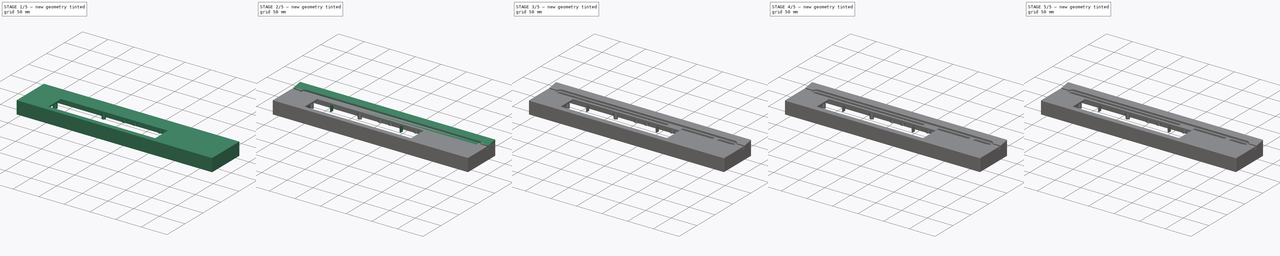
[diagram: build sequence overview — one tinted view per stage of 5, left to right]
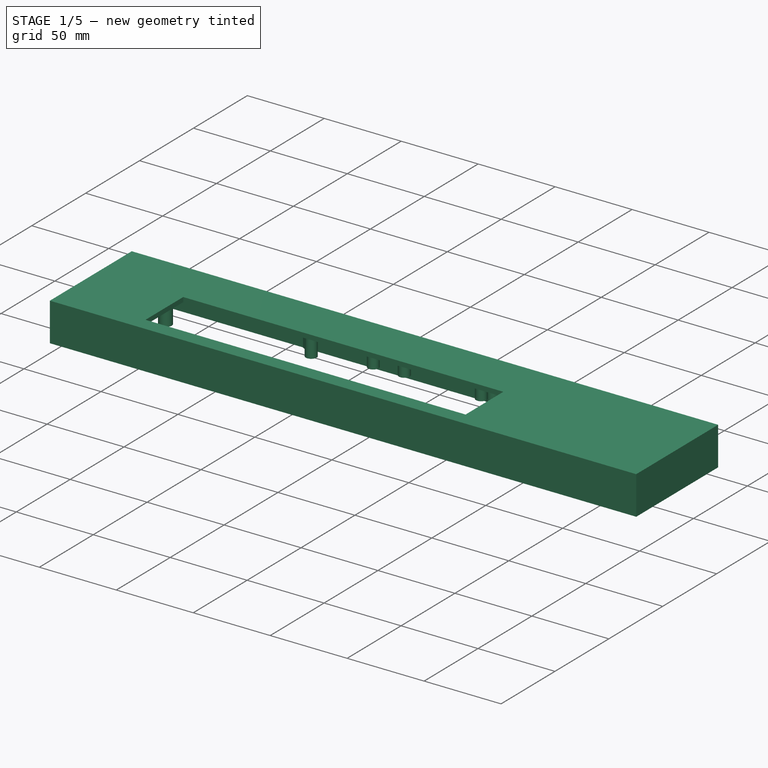
[diagram: stage 1 of 5 — iso view after this stage's code; geometry added in this stage tinted green]
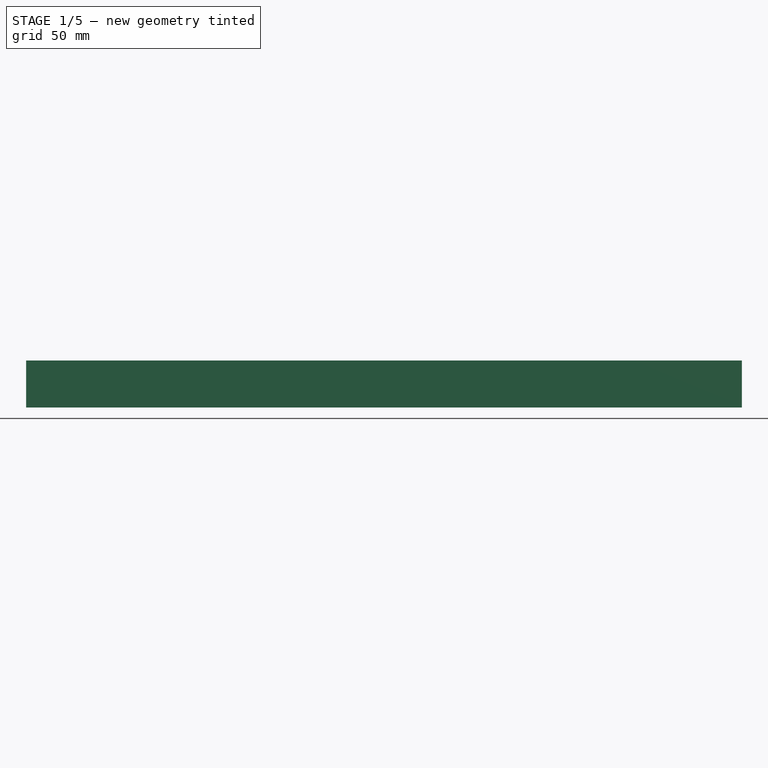
[diagram: stage 1 of 5 — front view after this stage's code; geometry added in this stage tinted green]
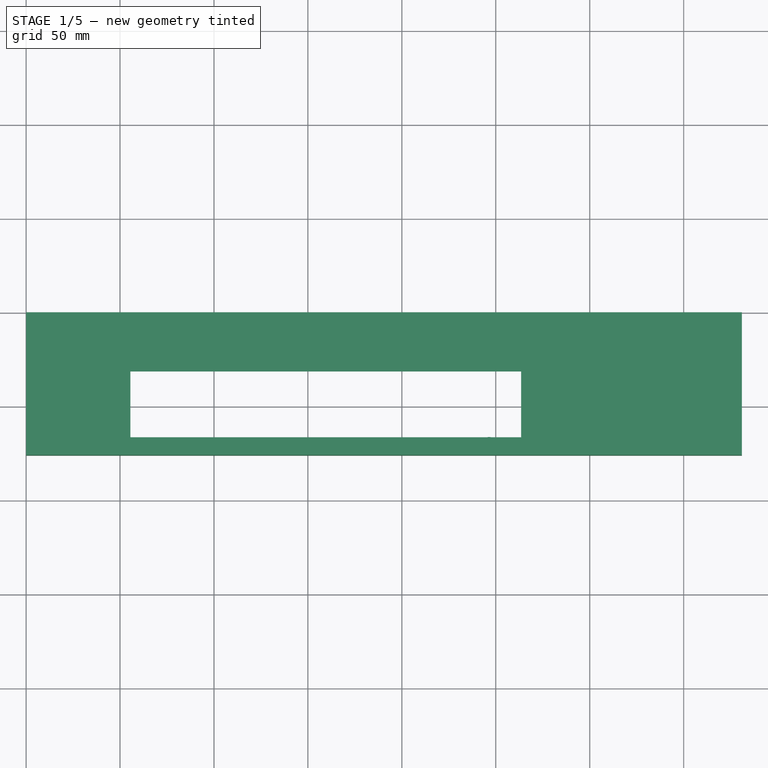
[diagram: stage 1 of 5 — top view after this stage's code; geometry added in this stage tinted green]
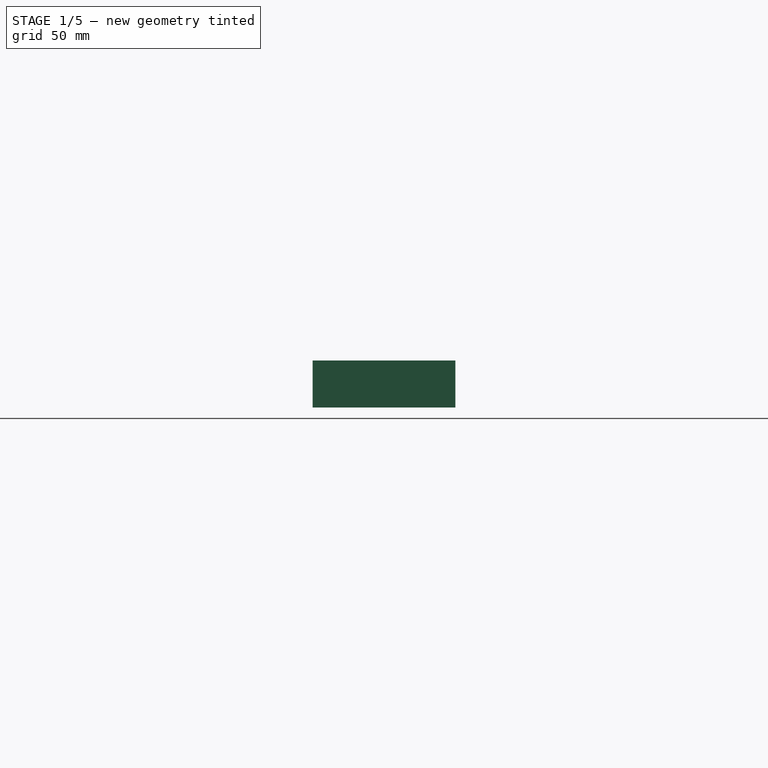
[diagram: stage 1 of 5 — right view after this stage's code; geometry added in this stage tinted green]
FCSTD DOCUMENT  (FreeCAD 0.18R4 (GitTag))
Label: panel_yritys2
License: All rights reserved
LicenseURL: http://en.wikipedia.org/wiki/All_rights_reserved
objects: Sketcher::SketchObject×25, PartDesign::Hole×22, PartDesign::Pad×18, PartDesign::Pocket×7, PartDesign::Fillet×7, PartDesign::Thickness×1, PartDesign::Draft×1, PartDesign::Body×1
note: 129 computed .brp shape members not serialized (recipe doc carries the construction recipe); baked Part::Feature solids carry a one-line shape summary decoded from their .brp

FEATURE [Sketcher::SketchObject] Sketch
  MapMode = 5
  Support = -> [XY_Plane]
  sketch-geometry (4):
    g0: LineSegment StartX=0 StartY=0 StartZ=0 EndX=381 EndY=0 EndZ=0
    g1: LineSegment StartX=381 StartY=0 StartZ=0 EndX=381 EndY=-76 EndZ=0
    g2: LineSegment StartX=381 StartY=-76 StartZ=0 EndX=0 EndY=-76 EndZ=0
    g3: LineSegment StartX=0 StartY=-76 StartZ=0 EndX=0 EndY=0 EndZ=0
  constraints (11):
    c: Coincident(g0,g1)
    c: Coincident(g1,g2)
    c: Coincident(g2,g3)
    c: Coincident(g3,g0)
    c: Horizontal(g0)
    c: Horizontal(g2)
    c: Vertical(g1)
    c: Vertical(g3)
    c: Coincident(g0,g-1)
    c: DistanceY(g3,g3) = 76
    c: DistanceX(g0,g0) = 381
FEATURE [PartDesign::Pad] Pad
  Length = 25
  Length2 = 100
  Profile = -> Sketch
  Type = 0
FEATURE [PartDesign::Thickness] Thickness
  Base = -> Pad [Face5]
  BaseFeature = -> Pad
  Join = 0
  Mode = 0
  Reversed = true
  Value = 3
FEATURE [Sketcher::SketchObject] Sketch001
  MapMode = 5
  Placement = pos=(0,0,22) rot=(1,0,0;3.14159rad)
  Support = -> [Thickness]
  sketch-geometry (4):
    g0: LineSegment StartX=55.5028 StartY=66.5441 StartZ=0 EndX=263.503 EndY=66.5441 EndZ=0
    g1: LineSegment StartX=263.503 StartY=66.5441 StartZ=0 EndX=263.503 EndY=31.5441 EndZ=0
    g2: LineSegment StartX=263.503 StartY=31.5441 StartZ=0 EndX=55.5028 EndY=31.5441 EndZ=0
    g3: LineSegment StartX=55.5028 StartY=31.5441 StartZ=0 EndX=55.5028 EndY=66.5441 EndZ=0
  constraints (12):
    c: Coincident(g0,g1)
    c: Coincident(g1,g2)
    c: Coincident(g2,g3)
    c: Coincident(g3,g0)
    c: Horizontal(g0)
    c: Horizontal(g2)
    c: Vertical(g1)
    c: Vertical(g3)
    c: DistanceY(g1,g1) = 35
    c: DistanceX(g2,g2) = 208
    c: DistanceX(g1) = 263.503
    c: DistanceY(g1) = 31.5441
FEATURE [PartDesign::Pocket] Pocket
  BaseFeature = -> Thickness
  Length = 5
  Length2 = 100
  Profile = -> Sketch001
  Type = 0
FEATURE [Sketcher::SketchObject] Sketch002
  MapMode = 5
  Placement = pos=(0,0,22) rot=(1,0,0;3.14159rad)
  Support = -> [Pocket]
  sketch-geometry (4):
    g0: Circle CenterX=12 CenterY=58.0191 CenterZ=0 NormalX=0 NormalY=0 NormalZ=1 AngleXU=0 Radius=4
    g1: Circle CenterX=12 CenterY=17.0191 CenterZ=0 NormalX=0 NormalY=0 NormalZ=1 AngleXU=0 Radius=4
    g2: Circle CenterX=369 CenterY=58.0107 CenterZ=0 NormalX=0 NormalY=0 NormalZ=1 AngleXU=0 Radius=4
    g3: Circle CenterX=369 CenterY=17.0107 CenterZ=0 NormalX=0 NormalY=0 NormalZ=1 AngleXU=0 Radius=4
  constraints (12):
    c: Radius(g2) = 4
    c: Radius(g3) = 4
    c: Radius(g0) = 4
    c: Radius(g1) = 4
    c: DistanceY(g1,g0) = 41
    c: DistanceY(g3,g2) = 41
    c: DistanceX(g0,g2) = 357
    c: DistanceX(g1,g3) = 357
    c: DistanceX(g3) = 369
    c: DistanceY(g3) = 17.0107
    c: DistanceX(g0) = 12
    c: DistanceY(g0) = 58.0191
FEATURE [PartDesign::Pad] Pad001
  BaseFeature = -> Pocket
  Length = 20
  Length2 = 100
  Profile = -> Sketch002
  Type = 0
FEATURE [Sketcher::SketchObject] Sketch003
  MapMode = 5
  Placement = pos=(0,0,22) rot=(1,0,0;3.14159rad)
  Support = -> [Pocket]
  sketch-geometry (4):
    g0: Circle CenterX=47.5 CenterY=57.0196 CenterZ=0 NormalX=0 NormalY=0 NormalZ=1 AngleXU=0 Radius=4
    g1: Circle CenterX=47.5 CenterY=36.5196 CenterZ=0 NormalX=0 NormalY=0 NormalZ=1 AngleXU=0 Radius=4
    g2: Circle CenterX=270.5 CenterY=36.4983 CenterZ=0 NormalX=0 NormalY=0 NormalZ=1 AngleXU=0 Radius=4
    g3: Circle CenterX=270.5 CenterY=56.9983 CenterZ=0 NormalX=0 NormalY=0 NormalZ=1 AngleXU=0 Radius=4
  constraints (12):
    c: Radius(g3) = 4
    c: Radius(g2) = 4
    c: Radius(g0) = 4
    c: Radius(g1) = 4
    c: DistanceY(g1,g0) = 20.5
    c: DistanceX(g0,g3) = 223
    c: DistanceY(g2,g3) = 20.5
    c: DistanceX(g1,g2) = 223
    c: DistanceX(g0) = 47.5
    c: DistanceY(g0) = 57.0196
    c: DistanceX(g2) = 270.5
    c: DistanceY(g2) = 36.4983
FEATURE [PartDesign::Pad] Pad002
  BaseFeature = -> Pad001
  Length = 13
  Length2 = 100
  Profile = -> Sketch003
  Type = 0
FEATURE [Sketcher::SketchObject] Sketch004
  MapMode = 5
  Placement = pos=(0,0,22) rot=(1,0,0;3.14159rad)
  Support = -> [Pad002]
  sketch-geometry (2):
    g0: Circle CenterX=30 CenterY=29.5 CenterZ=0 NormalX=0 NormalY=0 NormalZ=1 AngleXU=0 Radius=3.5
    g1: Circle CenterX=30 CenterY=11.5 CenterZ=0 NormalX=0 NormalY=0 NormalZ=1 AngleXU=0 Radius=3.5
  constraints (6):
    c: Radius(g0) = 3.5
    c: Radius(g1) = 3.5
    c: DistanceY(g1,g0) = 18
    c: DistanceX(g0) = 30
    c: DistanceY(g0) = 29.5
    c: DistanceX(g1) = 30
FEATURE [PartDesign::Pad] Pad003
  BaseFeature = -> Pad002
  Length = 15.5
  Length2 = 100
  Profile = -> Sketch004
  Type = 0
FEATURE [Sketcher::SketchObject] Sketch005
  MapMode = 5
  Placement = pos=(0,0,22) rot=(1,0,0;3.14159rad)
  Support = -> [Pad003]
  sketch-geometry (2):
    g0: Circle CenterX=351 CenterY=31 CenterZ=0 NormalX=0 NormalY=0 NormalZ=1 AngleXU=0 Radius=3.5
    g1: Circle CenterX=351 CenterY=10.5 CenterZ=0 NormalX=0 NormalY=0 NormalZ=1 AngleXU=0 Radius=3.5
  constraints (6):
    c: Radius(g0) = 3.5
    c: Radius(g1) = 3.5
    c: DistanceY(g1,g0) = 20.5
    c: DistanceX(g0) = 351
    c: DistanceY(g0) = 31
    c: DistanceX(g1) = 351
FEATURE [PartDesign::Pad] Pad004
  BaseFeature = -> Pad003
  Length = 12
  Length2 = 100
  Profile = -> Sketch005
  Type = 0
FEATURE [Sketcher::SketchObject] Sketch006
  MapMode = 5
  Placement = pos=(0,0,22) rot=(1,0,0;3.14159rad)
  Support = -> [Pad004]
  sketch-geometry (3):
    g0: Circle CenterX=124 CenterY=12 CenterZ=0 NormalX=0 NormalY=0 NormalZ=1 AngleXU=0 Radius=3.5
    g1: Circle CenterX=185.5 CenterY=12 CenterZ=0 NormalX=0 NormalY=0 NormalZ=1 AngleXU=0 Radius=3.5
    g2: Circle CenterX=300.5 CenterY=12 CenterZ=0 NormalX=0 NormalY=0 NormalZ=1 AngleXU=0 Radius=3.5
  constraints (9):
    c: Radius(g2) = 3.5
    c: Radius(g1) = 3.5
    c: Radius(g0) = 3.5
    c: DistanceX(g0) = 124
    c: DistanceY(g0) = 12
    c: DistanceX(g1) = 185.5
    c: DistanceY(g1) = 12
    c: DistanceX(g2) = 300.5
    c: DistanceY(g2) = 12
FEATURE [PartDesign::Pad] Pad005
  BaseFeature = -> Pad004
  Length = 15.5
  Length2 = 100
  Profile = -> Sketch006
  Type = 0
FEATURE [Sketcher::SketchObject] Sketch007
  MapMode = 5
  Placement = pos=(0,0,22) rot=(1,0,0;3.14159rad)
  Support = -> [Pad005]
  sketch-geometry (2):
    g0: Circle CenterX=326 CenterY=20.5 CenterZ=0 NormalX=0 NormalY=0 NormalZ=1 AngleXU=0 Radius=3.5
    g1: Circle CenterX=249 CenterY=20.5 CenterZ=0 NormalX=0 NormalY=0 NormalZ=1 AngleXU=0 Radius=3.5
  constraints (6):
    c: Radius(g1) = 3.5
    c: Radius(g0) = 3.5
    c: DistanceX(g1) = 249
    c: DistanceY(g1) = 20.5
    c: DistanceX(g0) = 326
    c: DistanceY(g0) = 20.5
FEATURE [PartDesign::Pad] Pad006
  BaseFeature = -> Pad005
  Length = 15.5
  Length2 = 100
  Profile = -> Sketch007
  Type = 0
FEATURE [Sketcher::SketchObject] Sketch008
  MapMode = 5
  Placement = pos=(0,0,22) rot=(1,0,0;3.14159rad)
  Support = -> [Pad006]
  sketch-geometry (1):
    g0: Circle CenterX=135.5 CenterY=27 CenterZ=0 NormalX=0 NormalY=0 NormalZ=1 AngleXU=0 Radius=3.5
  constraints (3):
    c: Radius(g0) = 3.5
    c: DistanceX(g0) = 135.5
    c: DistanceY(g0) = 27
FEATURE [PartDesign::Pad] Pad007
  BaseFeature = -> Pad006
  Length = 12
  Length2 = 100
  Profile = -> Sketch008
  Type = 0
FEATURE [Sketcher::SketchObject] Sketch009
  MapMode = 5
  Placement = pos=(0,0,22) rot=(1,0,0;3.14159rad)
  Support = -> [Pad007]
  sketch-geometry (4):
    g0: Circle CenterX=176.5 CenterY=28 CenterZ=0 NormalX=0 NormalY=0 NormalZ=1 AngleXU=0 Radius=3.4
    g1: Circle CenterX=246.5 CenterY=27.7637 CenterZ=0 NormalX=0 NormalY=0 NormalZ=1 AngleXU=0 Radius=3.4
    g2: Circle CenterX=176.5 CenterY=70 CenterZ=0 NormalX=0 NormalY=0 NormalZ=1 AngleXU=0 Radius=3.4
    g3: Circle CenterX=246.5 CenterY=69.7637 CenterZ=0 NormalX=0 NormalY=0 NormalZ=1 AngleXU=0 Radius=3.4
  constraints (12):
    c: Radius(g2) = 3.4
    c: Radius(g3) = 3.4
    c: Radius(g1) = 3.4
    c: Radius(g0) = 3.4
    c: DistanceX(g2,g3) = 70
    c: DistanceY(g1,g3) = 42
    c: DistanceY(g0,g2) = 42
    c: DistanceX(g0,g1) = 70
    c: DistanceX(g2) = 176.5
    c: DistanceY(g2) = 70
    c: DistanceX(g1) = 246.5
    c: DistanceY(g1) = 27.7637
FEATURE [PartDesign::Pad] Pad008
  BaseFeature = -> Pad007
  Length = 7
  Length2 = 100
  Profile = -> Sketch009
  Type = 0
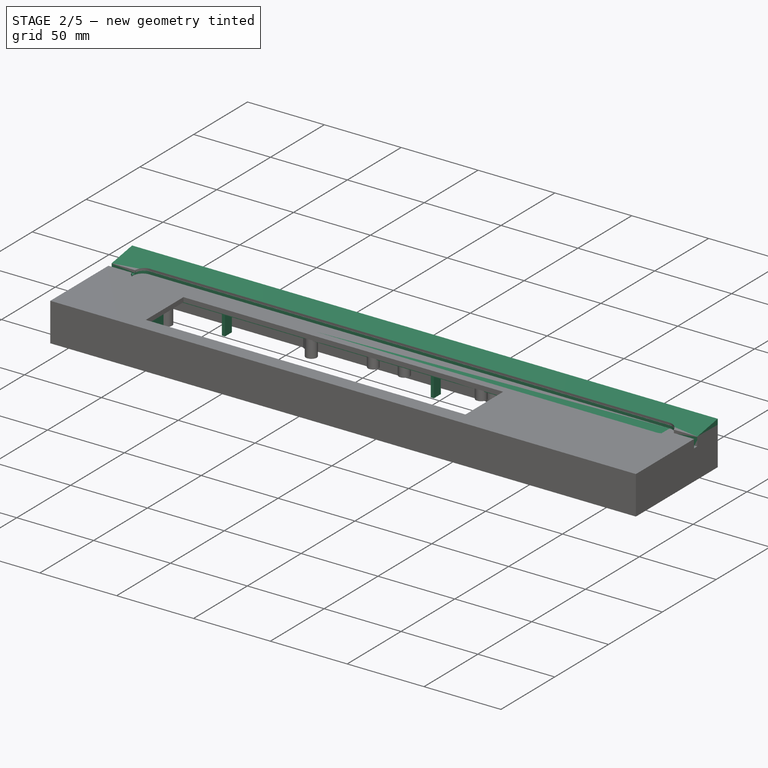
[diagram: stage 2 of 5 — iso view after this stage's code; geometry added in this stage tinted green]
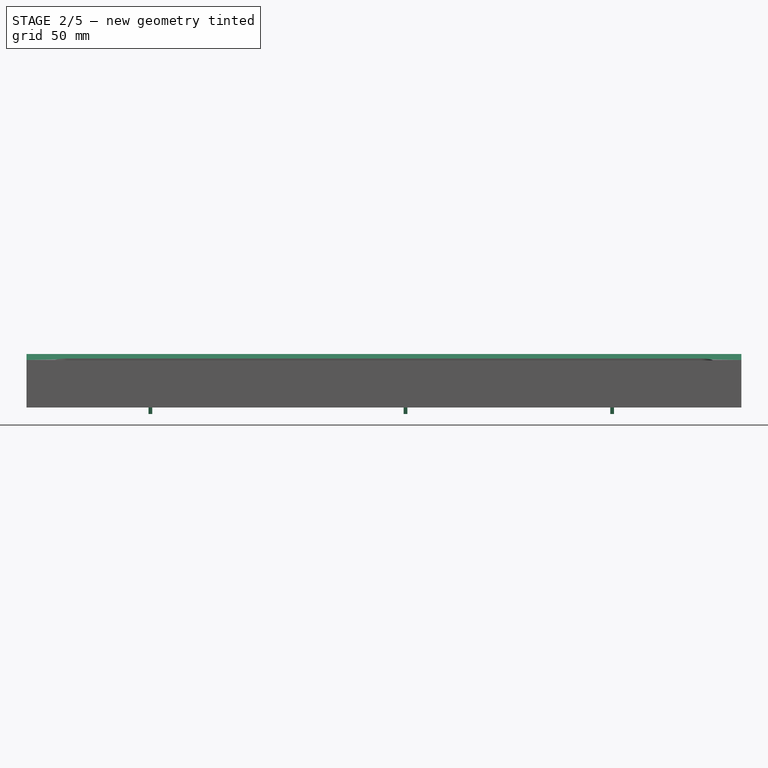
[diagram: stage 2 of 5 — front view after this stage's code; geometry added in this stage tinted green]
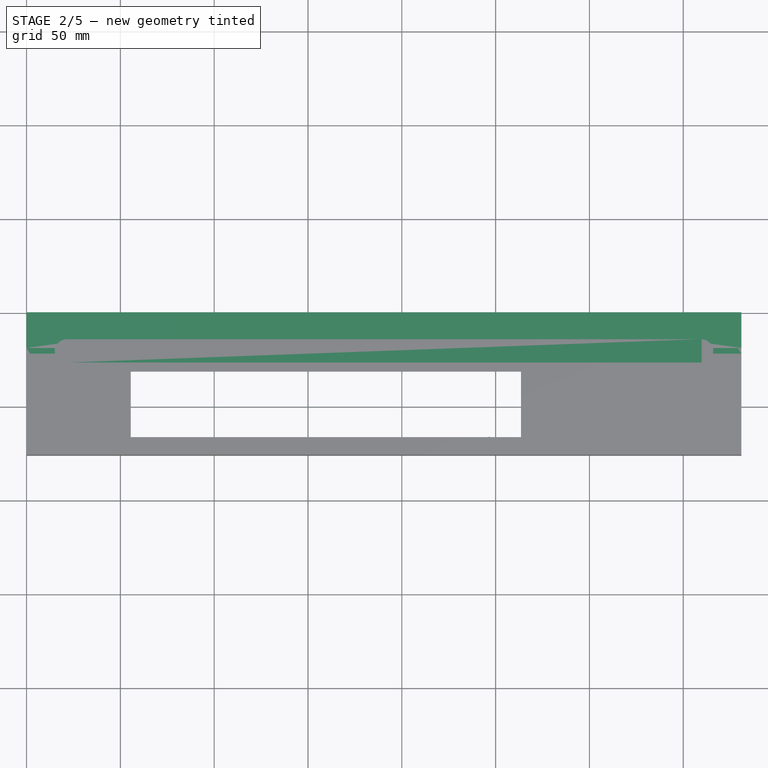
[diagram: stage 2 of 5 — top view after this stage's code; geometry added in this stage tinted green]
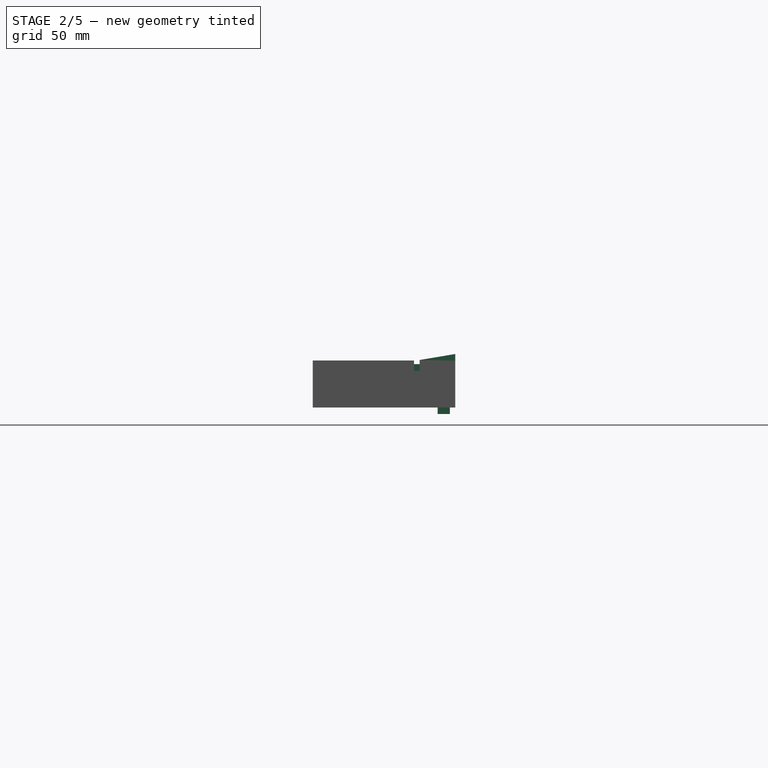
[diagram: stage 2 of 5 — right view after this stage's code; geometry added in this stage tinted green]
FEATURE [Sketcher::SketchObject] Sketch010
  MapMode = 5
  Placement = pos=(0,0,22) rot=(1,0,0;3.14159rad)
  Support = -> [Pad008]
  sketch-geometry (12):
    g0: LineSegment StartX=64.9871 StartY=9.4 StartZ=0 EndX=66.9871 EndY=9.4 EndZ=0
    g1: LineSegment StartX=66.9871 StartY=9.4 StartZ=0 EndX=66.9871 EndY=2.9 EndZ=0
    g2: LineSegment StartX=66.9871 StartY=2.9 StartZ=0 EndX=64.9871 EndY=2.9 EndZ=0
    g3: LineSegment StartX=64.9871 StartY=2.9 StartZ=0 EndX=64.9871 EndY=9.4 EndZ=0
    g4: LineSegment StartX=200.93 StartY=9.4 StartZ=0 EndX=202.93 EndY=9.4 EndZ=0
    g5: LineSegment StartX=202.93 StartY=9.4 StartZ=0 EndX=202.93 EndY=2.9 EndZ=0
    g6: LineSegment StartX=202.93 StartY=2.9 StartZ=0 EndX=200.93 EndY=2.9 EndZ=0
    g7: LineSegment StartX=200.93 StartY=2.9 StartZ=0 EndX=200.93 EndY=9.4 EndZ=0
    g8: LineSegment StartX=311.089 StartY=9.4 StartZ=0 EndX=313.089 EndY=9.4 EndZ=0
    g9: LineSegment StartX=313.089 StartY=9.4 StartZ=0 EndX=313.089 EndY=2.9 EndZ=0
    g10: LineSegment StartX=313.089 StartY=2.9 StartZ=0 EndX=311.089 EndY=2.9 EndZ=0
    g11: LineSegment StartX=311.089 StartY=2.9 StartZ=0 EndX=311.089 EndY=9.4 EndZ=0
  constraints (36):
    c: Coincident(g0,g1)
    c: Coincident(g1,g2)
    c: Coincident(g2,g3)
    c: Coincident(g3,g0)
    c: Horizontal(g0)
    c: Horizontal(g2)
    c: Vertical(g1)
    c: Vertical(g3)
    c: Coincident(g4,g5)
    c: Coincident(g5,g6)
    c: Coincident(g6,g7)
    c: Coincident(g7,g4)
    c: Horizontal(g4)
    c: Horizontal(g6)
    c: Vertical(g5)
    c: Vertical(g7)
    c: Coincident(g8,g9)
    c: Coincident(g9,g10)
    c: Coincident(g10,g11)
    c: Coincident(g11,g8)
    c: Horizontal(g8)
    c: Horizontal(g10)
    c: Vertical(g9)
    c: Vertical(g11)
    c: DistanceX(g0,g0) = 2
    c: DistanceY(g3,g3) = 6.5
    c: DistanceX(g4,g4) = 2
    c: DistanceY(g7,g7) = 6.5
    c: DistanceY(g11,g11) = 6.5
    c: DistanceX(g8,g8) = 2
    c: DistanceX(g8) = 311.089
    c: DistanceY(g8) = 9.4
    c: DistanceX(g4) = 200.93
    c: DistanceY(g4) = 9.4
    c: DistanceX(g0) = 64.9871
    c: DistanceY(g0) = 9.4
FEATURE [PartDesign::Pad] Pad009
  BaseFeature = -> Pad008
  Length = 25.5
  Length2 = 100
  Profile = -> Sketch010
  Type = 0
FEATURE [Sketcher::SketchObject] Sketch011
  MapMode = 5
  Placement = pos=(0,0,22) rot=(1,0,0;3.14159rad)
  Support = -> [Pad009]
  sketch-geometry (8):
    g0: LineSegment StartX=46.4961 StartY=53.2994 StartZ=0 EndX=48.6961 EndY=53.2994 EndZ=0
    g1: LineSegment StartX=48.6961 StartY=53.2994 StartZ=0 EndX=48.6961 EndY=40.3594 EndZ=0
    g2: LineSegment StartX=48.6961 StartY=40.3594 StartZ=0 EndX=46.4961 EndY=40.3594 EndZ=0
    g3: LineSegment StartX=46.4961 StartY=40.3594 StartZ=0 EndX=46.4961 EndY=53.2994 EndZ=0
    g4: LineSegment StartX=268.938 StartY=53.2911 StartZ=0 EndX=271.678 EndY=53.2911 EndZ=0
    g5: LineSegment StartX=271.678 StartY=53.2911 StartZ=0 EndX=271.678 EndY=40.1711 EndZ=0
    g6: LineSegment StartX=271.678 StartY=40.1711 StartZ=0 EndX=268.938 EndY=40.1711 EndZ=0
    g7: LineSegment StartX=268.938 StartY=40.1711 StartZ=0 EndX=268.938 EndY=53.2911 EndZ=0
  constraints (24):
    c: Coincident(g0,g1)
    c: Coincident(g1,g2)
    c: Coincident(g2,g3)
    c: Coincident(g3,g0)
    c: Horizontal(g0)
    c: Horizontal(g2)
    c: Vertical(g1)
    c: Vertical(g3)
    c: Coincident(g4,g5)
    c: Coincident(g5,g6)
    c: Coincident(g6,g7)
    c: Coincident(g7,g4)
    c: Horizontal(g4)
    c: Horizontal(g6)
    c: Vertical(g5)
    c: Vertical(g7)
    c: DistanceY(g3,g3) = 12.94
    c: DistanceX(g2,g1) = 2.2
    c: DistanceX(g2) = 46.4961
    c: DistanceY(g2) = 40.3594
    c: DistanceX(g4,g4) = 2.74
    c: DistanceY(g7,g7) = 13.12
    c: DistanceX(g4) = 268.938
    c: DistanceY(g4) = 53.2911
FEATURE [PartDesign::Pad] Pad010
  BaseFeature = -> Pad009
  Length = 12
  Length2 = 100
  Profile = -> Sketch011
  Type = 0
FEATURE [Sketcher::SketchObject] Sketch012
  MapMode = 5
  Placement = pos=(0,0,22) rot=(1,0,0;3.14159rad)
  Support = -> [Pad010]
  sketch-geometry (8):
    g0: LineSegment StartX=343 StartY=30.0592 StartZ=0 EndX=359 EndY=30.0592 EndZ=0
    g1: LineSegment StartX=359 StartY=30.0592 StartZ=0 EndX=359 EndY=28.0592 EndZ=0
    g2: LineSegment StartX=359 StartY=28.0592 StartZ=0 EndX=343 EndY=28.0592 EndZ=0
    g3: LineSegment StartX=343 StartY=28.0592 StartZ=0 EndX=343 EndY=30.0592 EndZ=0
    g4: LineSegment StartX=343 StartY=13.5516 StartZ=0 EndX=359 EndY=13.5516 EndZ=0
    g5: LineSegment StartX=359 StartY=13.5516 StartZ=0 EndX=359 EndY=11.5516 EndZ=0
    g6: LineSegment StartX=359 StartY=11.5516 StartZ=0 EndX=343 EndY=11.5516 EndZ=0
    g7: LineSegment StartX=343 StartY=11.5516 StartZ=0 EndX=343 EndY=13.5516 EndZ=0
  constraints (24):
    c: Coincident(g0,g1)
    c: Coincident(g1,g2)
    c: Coincident(g2,g3)
    c: Coincident(g3,g0)
    c: Horizontal(g0)
    c: Horizontal(g2)
    c: Vertical(g1)
    c: Vertical(g3)
    c: Coincident(g4,g5)
    c: Coincident(g5,g6)
    c: Coincident(g6,g7)
    c: Coincident(g7,g4)
    c: Horizontal(g4)
    c: Horizontal(g6)
    c: Vertical(g5)
    c: Vertical(g7)
    c: DistanceX(g0,g0) = 16
    c: DistanceY(g3,g3) = 2
    c: DistanceX(g4,g4) = 16
    c: DistanceY(g7,g7) = 2
    c: DistanceX(g0) = 343
    c: DistanceY(g0) = 30.0592
    c: DistanceX(g4) = 343
    c: DistanceY(g4) = 13.5516
FEATURE [PartDesign::Pad] Pad011
  BaseFeature = -> Pad010
  Length = 12
  Length2 = 100
  Profile = -> Sketch012
  Type = 0
FEATURE [Sketcher::SketchObject] Sketch015
  MapMode = 5
  Placement = pos=(0,0,25) rot=(0,0,1;0rad)
  sketch-geometry (4):
    g0: LineSegment StartX=0 StartY=0 StartZ=0 EndX=381 EndY=0 EndZ=0
    g1: LineSegment StartX=381 StartY=0 StartZ=0 EndX=381 EndY=-20.5 EndZ=0
    g2: LineSegment StartX=381 StartY=-20.5 StartZ=0 EndX=0 EndY=-20.5 EndZ=0
    g3: LineSegment StartX=0 StartY=-20.5 StartZ=0 EndX=0 EndY=0 EndZ=0
  constraints (11):
    c: Coincident(g0,g1)
    c: Coincident(g1,g2)
    c: Coincident(g2,g3)
    c: Coincident(g3,g0)
    c: Horizontal(g0)
    c: Horizontal(g2)
    c: Vertical(g1)
    c: Vertical(g3)
    c: Coincident(g0,g-1)
    c: DistanceY(g1,g1) = 20.5
    c: DistanceX(g2,g2) = 381
FEATURE [PartDesign::Pad] Pad012
  BaseFeature = -> Pad011
  Length = 3.5
  Length2 = 100
  Profile = -> Sketch015
  Type = 0
FEATURE [PartDesign::Draft] Draft
  Angle = 9.6
  Base = -> Pad012 [Face26]
  BaseFeature = -> Pad012
  NeutralPlane = -> Pad012 [Face5]
  Reversed = true
FEATURE [Sketcher::SketchObject] Sketch016
  MapMode = 5
  Placement = pos=(0,0,22) rot=(1,0,0;3.14159rad)
  Support = -> [Draft]
  sketch-geometry (4):
    g0: ArcOfCircle CenterX=8.8 CenterY=20.5452 CenterZ=0 NormalX=0 NormalY=0 NormalZ=1 AngleXU=0 Radius=8.8 StartAngle=1.5708 EndAngle=4.71239
    g1: ArcOfCircle CenterX=372.2 CenterY=20.5452 CenterZ=0 NormalX=0 NormalY=0 NormalZ=1 AngleXU=0 Radius=8.8 StartAngle=4.71239 EndAngle=7.85398
    g2: LineSegment StartX=8.8 StartY=11.7452 StartZ=0 EndX=372.2 EndY=11.7452 EndZ=0
    g3: LineSegment StartX=8.8 StartY=29.3452 StartZ=0 EndX=372.2 EndY=29.3452 EndZ=0
  constraints (10):
    c: Tangent(g0,g3) = 1.5708
    c: Tangent(g0,g2) = -1.5708
    c: Tangent(g2,g1) = -1.5708
    c: Tangent(g3,g1) = 1.5708
    c: Horizontal(g2)
    c: Equal(g0,g1)
    c: Radius(g0) = 8.8
    c: DistanceX(g3,g3) = 363.4
    c: DistanceX(g0) = 8.8
    c: DistanceY(g0) = 29.3452
FEATURE [PartDesign::Pad] Pad013
  BaseFeature = -> Draft
  Length = 1.6
  Length2 = 100
  Profile = -> Sketch016
  Type = 0
FEATURE [Sketcher::SketchObject] Sketch017
  MapMode = 5
  Placement = pos=(0,0,25) rot=(0,0,1;0rad)
  Support = -> [Pad013]
  sketch-geometry (4):
    g0: ArcOfCircle CenterX=21.25 CenterY=-20.5 CenterZ=0 NormalX=0 NormalY=0 NormalZ=1 AngleXU=0 Radius=6.25 StartAngle=1.5708 EndAngle=4.71239
    g1: ArcOfCircle CenterX=359.75 CenterY=-20.5 CenterZ=0 NormalX=0 NormalY=0 NormalZ=1 AngleXU=0 Radius=6.25 StartAngle=4.71239 EndAngle=7.85398
    g2: LineSegment StartX=21.25 StartY=-26.75 StartZ=0 EndX=359.75 EndY=-26.75 EndZ=0
    g3: LineSegment StartX=21.25 StartY=-14.25 StartZ=0 EndX=359.75 EndY=-14.25 EndZ=0
  constraints (10):
    c: Tangent(g0,g3) = 1.5708
    c: Tangent(g0,g2) = -1.5708
    c: Tangent(g2,g1) = -1.5708
    c: Tangent(g3,g1) = 1.5708
    c: Horizontal(g2)
    c: Equal(g0,g1)
    c: Radius(g1) = 6.25
    c: DistanceX(g3,g3) = 338.5
    c: DistanceX(g0) = 21.25
    c: DistanceY(g0) = -26.75
FEATURE [PartDesign::Pocket] Pocket001
  BaseFeature = -> Pad013
  Length = 2.4
  Length2 = 100
  Profile = -> Sketch017
  Type = 0
FEATURE [Sketcher::SketchObject] Sketch018
  MapMode = 5
  Placement = pos=(0,-4.68635,27.7074) rot=(1,0,0;0.167552rad)
  Support = -> [Pocket001]
  sketch-geometry (4):
    g0: ArcOfCircle CenterX=21.4961 CenterY=-16.3243 CenterZ=0 NormalX=0 NormalY=0 NormalZ=1 AngleXU=0 Radius=6.5 StartAngle=1.5702 EndAngle=3.10708
    g1: ArcOfCircle CenterX=359.482 CenterY=-16.3243 CenterZ=0 NormalX=0 NormalY=0 NormalZ=1 AngleXU=0 Radius=6.5 StartAngle=0.0345079 EndAngle=1.57315
    g2: LineSegment StartX=359.467 StartY=-9.82428 StartZ=0 EndX=21.5 EndY=-9.82428 EndZ=0
    g3: LineSegment StartX=15 StartY=-16.1 StartZ=0 EndX=365.978 EndY=-16.1 EndZ=0
  constraints (14):
    c: Coincident(g2,g1)
    c: Coincident(g2,g0)
    c: Horizontal(g2)
    c: Coincident(g3,g0)
    c: Coincident(g3,g1)
    c: Horizontal(g3)
    c: Radius(g1) = 6.5
    c: Radius(g0) = 6.5
    c: DistanceX(g0) = 15
    c: DistanceY(g0) = -16.1
    c: DistanceX(g0) = 21.5
    c: DistanceY(g0) = -9.82428
    c: DistanceX(g1) = 359.482
    c: DistanceY(g1) = -16.3243
FEATURE [PartDesign::Pocket] Pocket002
  BaseFeature = -> Pocket001
  Length = 1.6
  Length2 = 100
  Profile = -> Sketch018
  Type = 0
FEATURE [Sketcher::SketchObject] Sketch021
  MapMode = 5
  Placement = pos=(381,0,0) rot=(0.57735,0.57735,0.57735;2.0944rad)
  sketch-geometry (4):
    g0: LineSegment StartX=-22 StartY=23.1 StartZ=0 EndX=-19 EndY=23.1 EndZ=0
    g1: LineSegment StartX=-19 StartY=23.1 StartZ=0 EndX=-19 EndY=26.1 EndZ=0
    g2: LineSegment StartX=-19 StartY=26.1 StartZ=0 EndX=-22 EndY=26.1 EndZ=0
    g3: LineSegment StartX=-22 StartY=26.1 StartZ=0 EndX=-22 EndY=23.1 EndZ=0
  constraints (12):
    c: Coincident(g0,g1)
    c: Coincident(g1,g2)
    c: Coincident(g2,g3)
    c: Coincident(g3,g0)
    c: Horizontal(g0)
    c: Horizontal(g2)
    c: Vertical(g1)
    c: Vertical(g3)
    c: DistanceX(g2,g2) = 3
    c: DistanceY(g3,g3) = 3
    c: DistanceX(g0) = -22
    c: DistanceY(g0) = 23.1
FEATURE [PartDesign::Pocket] Pocket003
  BaseFeature = -> Pocket002
  Length = 19.5
  Length2 = 100
  Profile = -> Sketch021
  Type = 0
FEATURE [Sketcher::SketchObject] Sketch022
  MapMode = 5
  Placement = pos=(0,0,0) rot=(0.57735,-0.57735,-0.57735;2.0944rad)
  Support = -> [Pocket003]
  sketch-geometry (4):
    g0: LineSegment StartX=19 StartY=26.1 StartZ=0 EndX=22 EndY=26.1 EndZ=0
    g1: LineSegment StartX=22 StartY=26.1 StartZ=0 EndX=22 EndY=23.1 EndZ=0
    g2: LineSegment StartX=22 StartY=23.1 StartZ=0 EndX=19 EndY=23.1 EndZ=0
    g3: LineSegment StartX=19 StartY=23.1 StartZ=0 EndX=19 EndY=26.1 EndZ=0
  constraints (12):
    c: Coincident(g0,g1)
    c: Coincident(g1,g2)
    c: Coincident(g2,g3)
    c: Coincident(g3,g0)
    c: Horizontal(g0)
    c: Horizontal(g2)
    c: Vertical(g1)
    c: Vertical(g3)
    c: DistanceX(g0,g0) = 3
    c: DistanceY(g1,g1) = 3
    c: DistanceX(g1) = 22
    c: DistanceY(g1) = 23.1
FEATURE [PartDesign::Pocket] Pocket004
  BaseFeature = -> Pocket003
  Length = 19.5
  Length2 = 100
  Profile = -> Sketch022
  Type = 0
FEATURE [Sketcher::SketchObject] Sketch023
  MapMode = 5
  Placement = pos=(0,0,25) rot=(0,0,1;0rad)
  Support = -> [Pocket004]
  sketch-geometry (8):
    g0: LineSegment StartX=-1.1 StartY=-19.006 StartZ=0 EndX=1.9 EndY=-19.006 EndZ=0
    g1: LineSegment StartX=1.9 StartY=-19.006 StartZ=0 EndX=1.9 EndY=-22.006 EndZ=0
    g2: LineSegment StartX=1.9 StartY=-22.006 StartZ=0 EndX=-1.1 EndY=-22.006 EndZ=0
    g3: LineSegment StartX=-1.1 StartY=-22.006 StartZ=0 EndX=-1.1 EndY=-19.006 EndZ=0
    g4: LineSegment StartX=379.1 StartY=-19.0014 StartZ=0 EndX=382.1 EndY=-19.0014 EndZ=0
    g5: LineSegment StartX=382.1 StartY=-19.0014 StartZ=0 EndX=382.1 EndY=-22.0014 EndZ=0
    g6: LineSegment StartX=382.1 StartY=-22.0014 StartZ=0 EndX=379.1 EndY=-22.0014 EndZ=0
    g7: LineSegment StartX=379.1 StartY=-22.0014 StartZ=0 EndX=379.1 EndY=-19.0014 EndZ=0
  constraints (24):
    c: Coincident(g0,g1)
    c: Coincident(g1,g2)
    c: Coincident(g2,g3)
    c: Coincident(g3,g0)
    c: Horizontal(g0)
    c: Horizontal(g2)
    c: Vertical(g1)
    c: Vertical(g3)
    c: Coincident(g4,g5)
    c: Coincident(g5,g6)
    c: Coincident(g6,g7)
    c: Coincident(g7,g4)
    c: Horizontal(g4)
    c: Horizontal(g6)
    c: Vertical(g5)
    c: Vertical(g7)
    c: DistanceY(g5,g5) = 3
    c: DistanceX(g4,g4) = 3
    c: DistanceX(g0,g0) = 3
    c: DistanceY(g3,g3) = 3
    c: DistanceX(g0) = 1.9
    c: DistanceY(g0) = -19.006
    c: DistanceX(g4) = 379.1
    c: DistanceY(g4) = -19.0014
FEATURE [PartDesign::Pocket] Pocket005
  BaseFeature = -> Pocket004
  Length = 5.5
  Length2 = 100
  Profile = -> Sketch023
  Type = 0
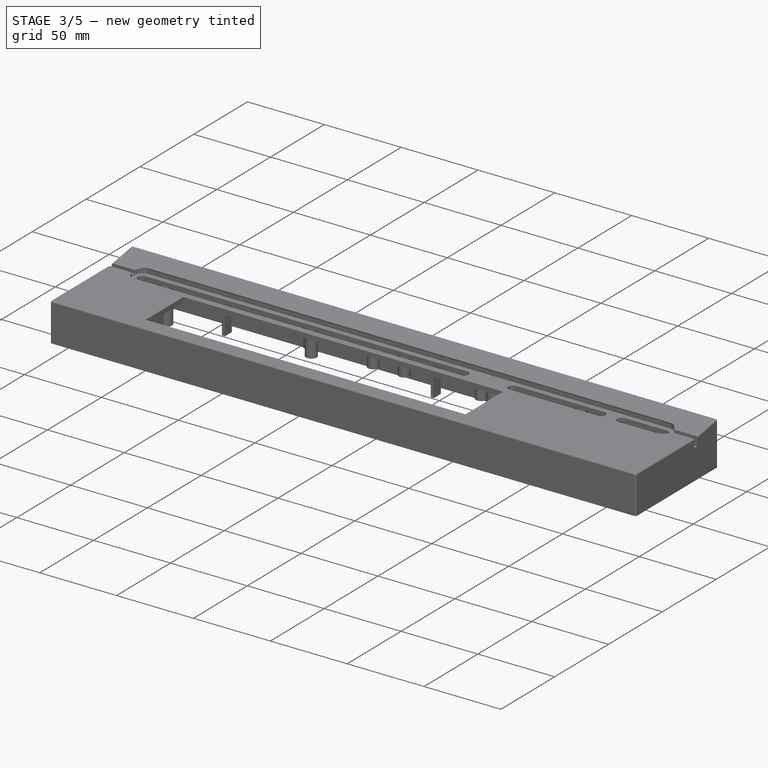
[diagram: stage 3 of 5 — iso view after this stage's code; geometry added in this stage tinted green]
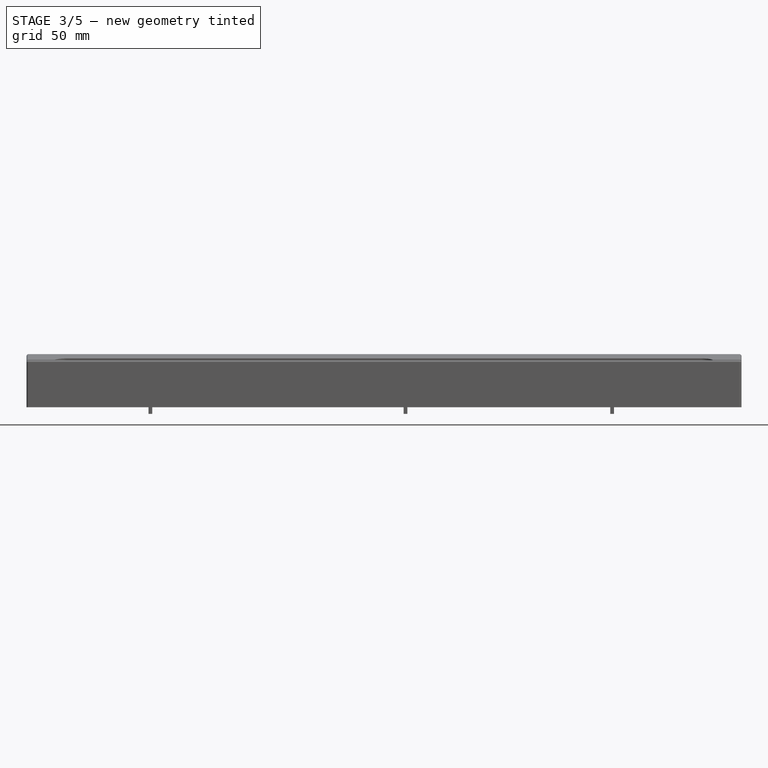
[diagram: stage 3 of 5 — front view after this stage's code; geometry added in this stage tinted green]
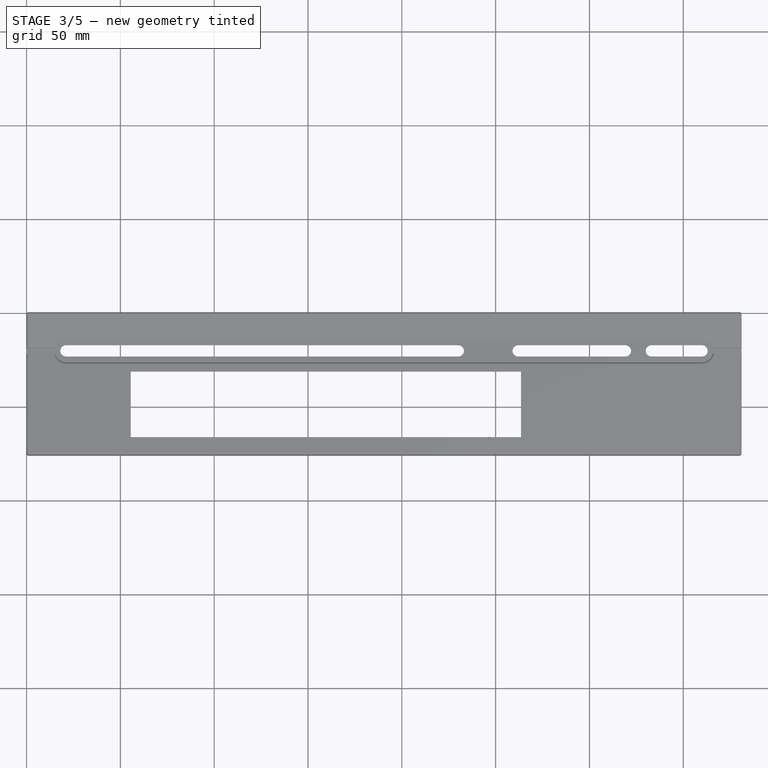
[diagram: stage 3 of 5 — top view after this stage's code; geometry added in this stage tinted green]
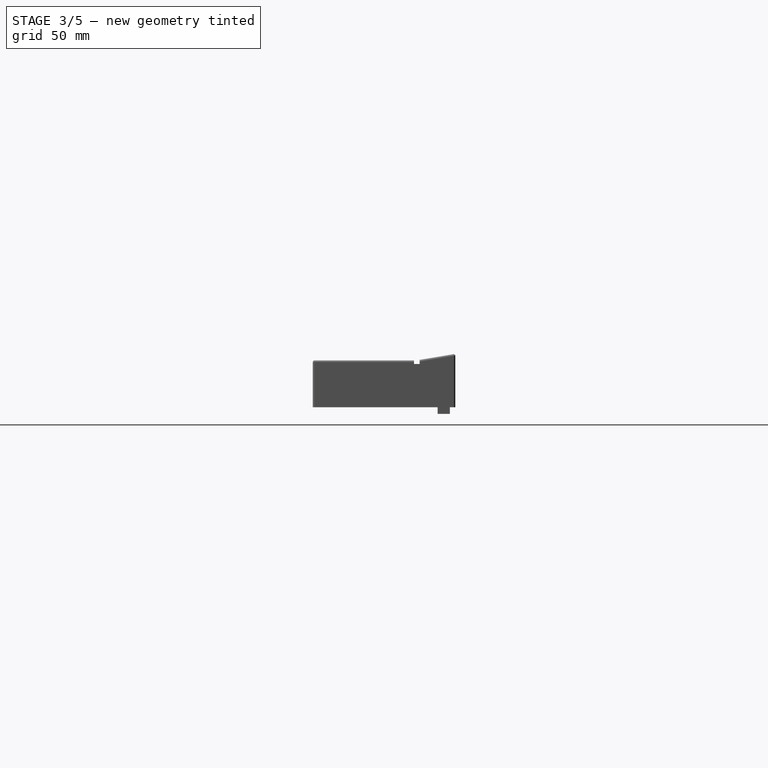
[diagram: stage 3 of 5 — right view after this stage's code; geometry added in this stage tinted green]
FEATURE [Sketcher::SketchObject] Sketch024
  MapMode = 5
  Placement = pos=(0,0,20.4) rot=(1,0,0;3.14159rad)
  Support = -> [Pocket005]
  sketch-geometry (12):
    g0: ArcOfCircle CenterX=21 CenterY=20.5 CenterZ=0 NormalX=0 NormalY=0 NormalZ=1 AngleXU=0 Radius=3 StartAngle=1.5708 EndAngle=4.71239
    g1: ArcOfCircle CenterX=230.08 CenterY=20.5 CenterZ=0 NormalX=0 NormalY=0 NormalZ=1 AngleXU=0 Radius=3 StartAngle=4.71239 EndAngle=7.85398
    g2: LineSegment StartX=21 StartY=17.5 StartZ=0 EndX=230.08 EndY=17.5 EndZ=0
    g3: LineSegment StartX=21 StartY=23.5 StartZ=0 EndX=230.08 EndY=23.5 EndZ=0
    g4: ArcOfCircle CenterX=262.009 CenterY=20.5 CenterZ=0 NormalX=0 NormalY=0 NormalZ=1 AngleXU=0 Radius=3 StartAngle=1.5708 EndAngle=4.71239
    g5: ArcOfCircle CenterX=319.169 CenterY=20.5 CenterZ=0 NormalX=0 NormalY=0 NormalZ=1 AngleXU=0 Radius=3 StartAngle=4.71239 EndAngle=7.85398
    g6: LineSegment StartX=262.009 StartY=17.5 StartZ=0 EndX=319.169 EndY=17.5 EndZ=0
    g7: LineSegment StartX=262.009 StartY=23.5 StartZ=0 EndX=319.169 EndY=23.5 EndZ=0
    g8: ArcOfCircle CenterX=333.007 CenterY=20.5 CenterZ=0 NormalX=0 NormalY=0 NormalZ=1 AngleXU=0 Radius=3 StartAngle=1.5708 EndAngle=4.71239
    g9: ArcOfCircle CenterX=360 CenterY=20.5 CenterZ=0 NormalX=0 NormalY=0 NormalZ=1 AngleXU=0 Radius=3 StartAngle=4.71239 EndAngle=7.85398
    g10: LineSegment StartX=333.007 StartY=17.5 StartZ=0 EndX=360 EndY=17.5 EndZ=0
    g11: LineSegment StartX=333.007 StartY=23.5 StartZ=0 EndX=360 EndY=23.5 EndZ=0
  constraints (30):
    c: Tangent(g0,g3) = 1.5708
    c: Tangent(g0,g2) = -1.5708
    c: Tangent(g2,g1) = -1.5708
    c: Tangent(g3,g1) = 1.5708
    c: Horizontal(g2)
    c: Equal(g0,g1)
    c: Tangent(g4,g7) = 1.5708
    c: Tangent(g4,g6) = -1.5708
    c: Tangent(g6,g5) = -1.5708
    c: Tangent(g7,g5) = 1.5708
    c: Horizontal(g6)
    c: Equal(g4,g5)
    c: Tangent(g8,g11) = 1.5708
    c: Tangent(g8,g10) = -1.5708
    c: Tangent(g10,g9) = -1.5708
    c: Tangent(g11,g9) = 1.5708
    c: Horizontal(g10)
    c: Equal(g8,g9)
    c: Radius(g9) = 3
    c: Radius(g5) = 3
    c: Radius(g1) = 3
    c: DistanceX(g0) = 21
    c: DistanceY(g0) = 20.5
    c: DistanceX(g4) = 262.009
    c: DistanceY(g4) = 20.5
    c: DistanceX(g8) = 333.007
    c: DistanceY(g8) = 20.5
    c: DistanceX(g9) = 360
    c: DistanceX(g3,g3) = 209.08
    c: DistanceX(g7,g7) = 57.16
FEATURE [PartDesign::Pocket] Pocket006
  BaseFeature = -> Pocket005
  Length = 6
  Length2 = 100
  Profile = -> Sketch024
  Type = 0
FEATURE [Sketcher::SketchObject] Sketch025
  MapMode = 5
  Placement = pos=(0,0,20.4) rot=(1,0,0;3.14159rad)
  Support = -> [Pocket006]
  sketch-geometry (4):
    g0: LineSegment StartX=324.985 StartY=17.2452 StartZ=0 EndX=326.985 EndY=17.2452 EndZ=0
    g1: LineSegment StartX=326.985 StartY=17.2452 StartZ=0 EndX=326.985 EndY=11.8252 EndZ=0
    g2: LineSegment StartX=326.985 StartY=11.8252 StartZ=0 EndX=324.985 EndY=11.8252 EndZ=0
    g3: LineSegment StartX=324.985 StartY=11.8252 StartZ=0 EndX=324.985 EndY=17.2452 EndZ=0
  constraints (12):
    c: Coincident(g0,g1)
    c: Coincident(g1,g2)
    c: Coincident(g2,g3)
    c: Coincident(g3,g0)
    c: Horizontal(g0)
    c: Horizontal(g2)
    c: Vertical(g1)
    c: Vertical(g3)
    c: DistanceX(g2,g2) = 2
    c: DistanceY(g3,g3) = 5.42
    c: DistanceX(g2) = 324.985
    c: DistanceY(g2) = 11.8252
FEATURE [PartDesign::Pad] Pad014
  BaseFeature = -> Pocket006
  Length = 13
  Length2 = 100
  Profile = -> Sketch025
  Type = 0
FEATURE [PartDesign::Fillet] Fillet
  Base = -> Pad014 [Edge71]
  BaseFeature = -> Pad014
  Radius = 1
FEATURE [PartDesign::Fillet] Fillet001
  Base = -> Fillet [Edge1]
  BaseFeature = -> Fillet
  Radius = 1
FEATURE [PartDesign::Fillet] Fillet002
  Base = -> Fillet001 [Edge151]
  BaseFeature = -> Fillet001
  Radius = 1
FEATURE [PartDesign::Fillet] Fillet003
  Base = -> Fillet002 [Edge18]
  BaseFeature = -> Fillet002
  Radius = 1
FEATURE [PartDesign::Fillet] Fillet004
  Base = -> Fillet003 [Edge82]
  BaseFeature = -> Fillet003
  Radius = 1
FEATURE [PartDesign::Fillet] Fillet005
  Base = -> Fillet004 [Edge120]
  BaseFeature = -> Fillet004
  Radius = 1
FEATURE [PartDesign::Fillet] Fillet006
  Base = -> Fillet005 [Edge325]
  BaseFeature = -> Fillet005
  Radius = 1
FEATURE [PartDesign::Hole] Hole
  BaseFeature = -> Fillet006
  Depth = 12
  DepthType = 0
  Diameter = 2.7
  DrillPoint = 1
  DrillPointAngle = 118
  HoleCutCountersinkAngle = 90
  HoleCutDepth = 0
  HoleCutDiameter = 0
  HoleCutType = 0
  ModelActualThread = false
  Profile = -> Fillet006 [Face144]
  Tapered = false
  TaperedAngle = 90
  ThreadAngle = 0
  ThreadClass = 0
  ThreadCutOffInner = 0
  ThreadCutOffOuter = 0
  ThreadDirection = 0
  ThreadFit = 0
  ThreadPitch = 0
  ThreadSize = 0
  ThreadType = 0
  Threaded = false
FEATURE [PartDesign::Hole] Hole001
  BaseFeature = -> Hole
  Depth = 12
  DepthType = 0
  Diameter = 2.7
  DrillPoint = 1
  DrillPointAngle = 118
  HoleCutCountersinkAngle = 90
  HoleCutDepth = 0
  HoleCutDiameter = 0
  HoleCutType = 0
  ModelActualThread = false
  Profile = -> Hole [Face196]
  Tapered = false
  TaperedAngle = 90
  ThreadAngle = 0
  ThreadClass = 0
  ThreadCutOffInner = 0
  ThreadCutOffOuter = 0
  ThreadDirection = 0
  ThreadFit = 0
  ThreadPitch = 0
  ThreadSize = 0
  ThreadType = 0
  Threaded = false
FEATURE [PartDesign::Hole] Hole002
  BaseFeature = -> Hole001
  Depth = 12
  DepthType = 0
  Diameter = 2.7
  DrillPoint = 1
  DrillPointAngle = 118
  HoleCutCountersinkAngle = 90
  HoleCutDepth = 0
  HoleCutDiameter = 0
  HoleCutType = 0
  ModelActualThread = false
  Profile = -> Hole001 [Face142]
  Tapered = false
  TaperedAngle = 90
  ThreadAngle = 0
  ThreadClass = 0
  ThreadCutOffInner = 0
  ThreadCutOffOuter = 0
  ThreadDirection = 0
  ThreadFit = 0
  ThreadPitch = 0
  ThreadSize = 0
  ThreadType = 0
  Threaded = false
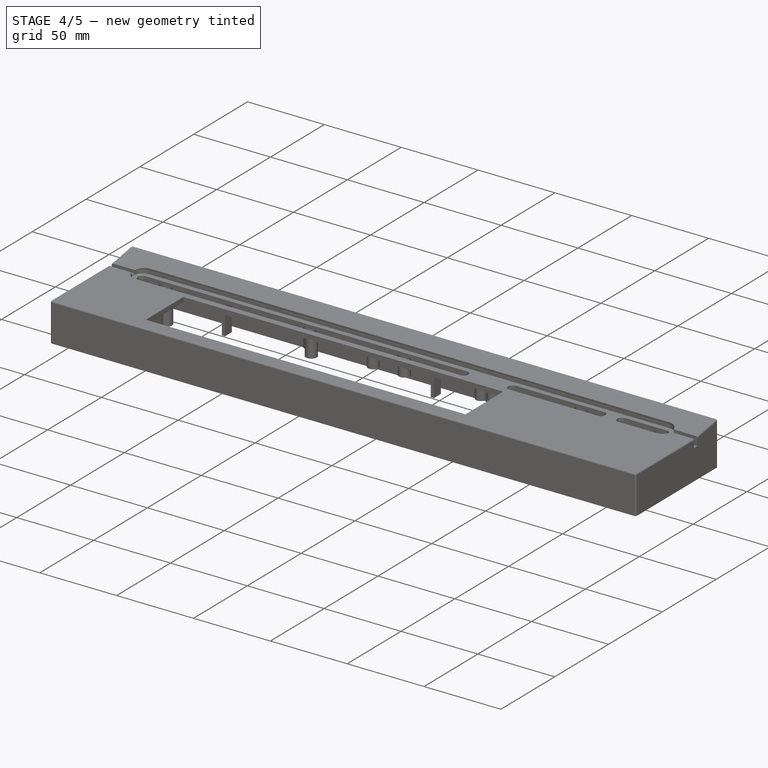
[diagram: stage 4 of 5 — iso view after this stage's code; geometry added in this stage tinted green]
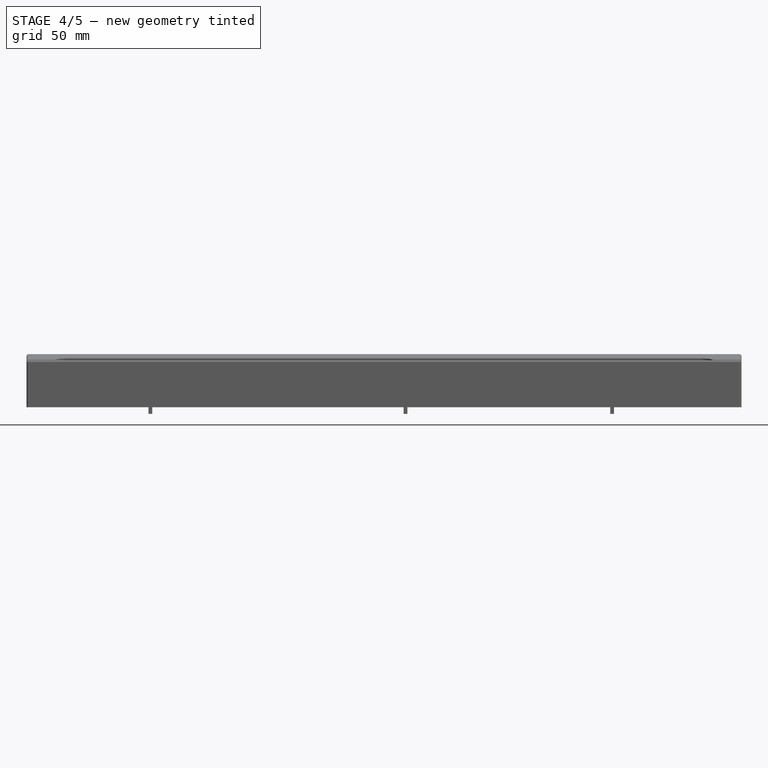
[diagram: stage 4 of 5 — front view after this stage's code; geometry added in this stage tinted green]
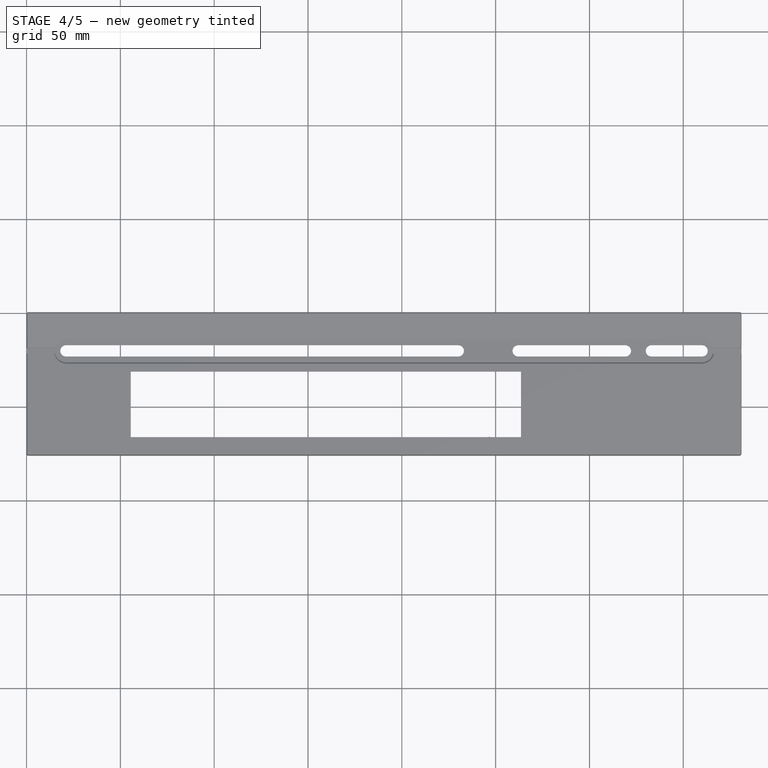
[diagram: stage 4 of 5 — top view after this stage's code; geometry added in this stage tinted green]
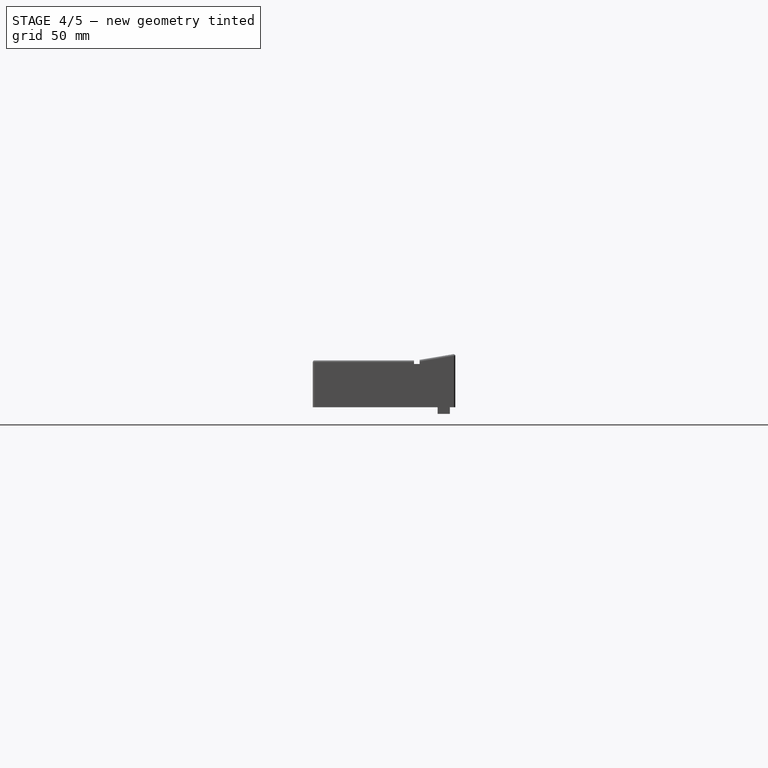
[diagram: stage 4 of 5 — right view after this stage's code; geometry added in this stage tinted green]
FEATURE [PartDesign::Hole] Hole003
  BaseFeature = -> Hole002
  Depth = 10
  DepthType = 0
  Diameter = 2.7
  DrillPoint = 1
  DrillPointAngle = 118
  HoleCutCountersinkAngle = 90
  HoleCutDepth = 0
  HoleCutDiameter = 0
  HoleCutType = 0
  ModelActualThread = false
  Profile = -> Hole002 [Face141]
  Tapered = false
  TaperedAngle = 90
  ThreadAngle = 0
  ThreadClass = 0
  ThreadCutOffInner = 0
  ThreadCutOffOuter = 0
  ThreadDirection = 0
  ThreadFit = 0
  ThreadPitch = 0
  ThreadSize = 0
  ThreadType = 0
  Threaded = false
FEATURE [PartDesign::Hole] Hole004
  BaseFeature = -> Hole003
  Depth = 10
  DepthType = 0
  Diameter = 2.7
  DrillPoint = 1
  DrillPointAngle = 118
  HoleCutCountersinkAngle = 90
  HoleCutDepth = 0
  HoleCutDiameter = 0
  HoleCutType = 0
  ModelActualThread = false
  Profile = -> Hole003 [Face139]
  Tapered = false
  TaperedAngle = 90
  ThreadAngle = 0
  ThreadClass = 0
  ThreadCutOffInner = 0
  ThreadCutOffOuter = 0
  ThreadDirection = 0
  ThreadFit = 0
  ThreadPitch = 0
  ThreadSize = 0
  ThreadType = 0
  Threaded = false
FEATURE [PartDesign::Hole] Hole005
  BaseFeature = -> Hole004
  Depth = 10
  DepthType = 0
  Diameter = 2.7
  DrillPoint = 1
  DrillPointAngle = 118
  HoleCutCountersinkAngle = 90
  HoleCutDepth = 0
  HoleCutDiameter = 0
  HoleCutType = 0
  ModelActualThread = false
  Profile = -> Hole004 [Face138]
  Tapered = false
  TaperedAngle = 90
  ThreadAngle = 0
  ThreadClass = 0
  ThreadCutOffInner = 0
  ThreadCutOffOuter = 0
  ThreadDirection = 0
  ThreadFit = 0
  ThreadPitch = 0
  ThreadSize = 0
  ThreadType = 0
  Threaded = false
FEATURE [PartDesign::Hole] Hole006
  BaseFeature = -> Hole005
  Depth = 12
  DepthType = 0
  Diameter = 2.7
  DrillPoint = 1
  DrillPointAngle = 118
  HoleCutCountersinkAngle = 90
  HoleCutDepth = 0
  HoleCutDiameter = 0
  HoleCutType = 0
  ModelActualThread = false
  Profile = -> Hole005 [Face143]
  Tapered = false
  TaperedAngle = 90
  ThreadAngle = 0
  ThreadClass = 0
  ThreadCutOffInner = 0
  ThreadCutOffOuter = 0
  ThreadDirection = 0
  ThreadFit = 0
  ThreadPitch = 0
  ThreadSize = 0
  ThreadType = 0
  Threaded = false
FEATURE [PartDesign::Hole] Hole007
  BaseFeature = -> Hole006
  Depth = 12
  DepthType = 0
  Diameter = 2.7
  DrillPoint = 1
  DrillPointAngle = 118
  HoleCutCountersinkAngle = 90
  HoleCutDepth = 0
  HoleCutDiameter = 0
  HoleCutType = 0
  ModelActualThread = false
  Profile = -> Hole006 [Face197]
  Tapered = false
  TaperedAngle = 90
  ThreadAngle = 0
  ThreadClass = 0
  ThreadCutOffInner = 0
  ThreadCutOffOuter = 0
  ThreadDirection = 0
  ThreadFit = 0
  ThreadPitch = 0
  ThreadSize = 0
  ThreadType = 0
  Threaded = false
FEATURE [PartDesign::Hole] Hole008
  BaseFeature = -> Hole007
  Depth = 10
  DepthType = 0
  Diameter = 2.1
  DrillPoint = 1
  DrillPointAngle = 118
  HoleCutCountersinkAngle = 90
  HoleCutDepth = 0
  HoleCutDiameter = 0
  HoleCutType = 0
  ModelActualThread = false
  Profile = -> Hole007 [Face131]
  Tapered = false
  TaperedAngle = 90
  ThreadAngle = 0
  ThreadClass = 0
  ThreadCutOffInner = 0
  ThreadCutOffOuter = 0
  ThreadDirection = 0
  ThreadFit = 0
  ThreadPitch = 0
  ThreadSize = 0
  ThreadType = 0
  Threaded = false
FEATURE [PartDesign::Hole] Hole009
  BaseFeature = -> Hole008
  Depth = 10
  DepthType = 0
  Diameter = 2.1
  DrillPoint = 1
  DrillPointAngle = 118
  HoleCutCountersinkAngle = 90
  HoleCutDepth = 0
  HoleCutDiameter = 0
  HoleCutType = 0
  ModelActualThread = false
  Profile = -> Hole008 [Face197]
  Tapered = false
  TaperedAngle = 90
  ThreadAngle = 0
  ThreadClass = 0
  ThreadCutOffInner = 0
  ThreadCutOffOuter = 0
  ThreadDirection = 0
  ThreadFit = 0
  ThreadPitch = 0
  ThreadSize = 0
  ThreadType = 0
  Threaded = false
FEATURE [PartDesign::Hole] Hole010
  BaseFeature = -> Hole009
  Depth = 10
  DepthType = 0
  Diameter = 2.1
  DrillPoint = 1
  DrillPointAngle = 118
  HoleCutCountersinkAngle = 90
  HoleCutDepth = 0
  HoleCutDiameter = 0
  HoleCutType = 0
  ModelActualThread = false
  Profile = -> Hole009 [Face196]
  Tapered = false
  TaperedAngle = 90
  ThreadAngle = 0
  ThreadClass = 0
  ThreadCutOffInner = 0
  ThreadCutOffOuter = 0
  ThreadDirection = 0
  ThreadFit = 0
  ThreadPitch = 0
  ThreadSize = 0
  ThreadType = 0
  Threaded = false
FEATURE [PartDesign::Hole] Hole011
  BaseFeature = -> Hole010
  Depth = 10
  DepthType = 0
  Diameter = 2.1
  DrillPoint = 1
  DrillPointAngle = 118
  HoleCutCountersinkAngle = 90
  HoleCutDepth = 0
  HoleCutDiameter = 0
  HoleCutType = 0
  ModelActualThread = false
  Profile = -> Hole010 [Face195]
  Tapered = false
  TaperedAngle = 90
  ThreadAngle = 0
  ThreadClass = 0
  ThreadCutOffInner = 0
  ThreadCutOffOuter = 0
  ThreadDirection = 0
  ThreadFit = 0
  ThreadPitch = 0
  ThreadSize = 0
  ThreadType = 0
  Threaded = false
FEATURE [PartDesign::Hole] Hole012
  BaseFeature = -> Hole011
  Depth = 10
  DepthType = 0
  Diameter = 2.1
  DrillPoint = 1
  DrillPointAngle = 118
  HoleCutCountersinkAngle = 90
  HoleCutDepth = 0
  HoleCutDiameter = 0
  HoleCutType = 0
  ModelActualThread = false
  Profile = -> Hole011 [Face194]
  Tapered = false
  TaperedAngle = 90
  ThreadAngle = 0
  ThreadClass = 0
  ThreadCutOffInner = 0
  ThreadCutOffOuter = 0
  ThreadDirection = 0
  ThreadFit = 0
  ThreadPitch = 0
  ThreadSize = 0
  ThreadType = 0
  Threaded = false
FEATURE [PartDesign::Hole] Hole013
  BaseFeature = -> Hole012
  Depth = 10
  DepthType = 0
  Diameter = 2.1
  DrillPoint = 1
  DrillPointAngle = 118
  HoleCutCountersinkAngle = 90
  HoleCutDepth = 0
  HoleCutDiameter = 0
  HoleCutType = 0
  ModelActualThread = false
  Profile = -> Hole012 [Face199]
  Tapered = false
  TaperedAngle = 90
  ThreadAngle = 0
  ThreadClass = 0
  ThreadCutOffInner = 0
  ThreadCutOffOuter = 0
  ThreadDirection = 0
  ThreadFit = 0
  ThreadPitch = 0
  ThreadSize = 0
  ThreadType = 0
  Threaded = false
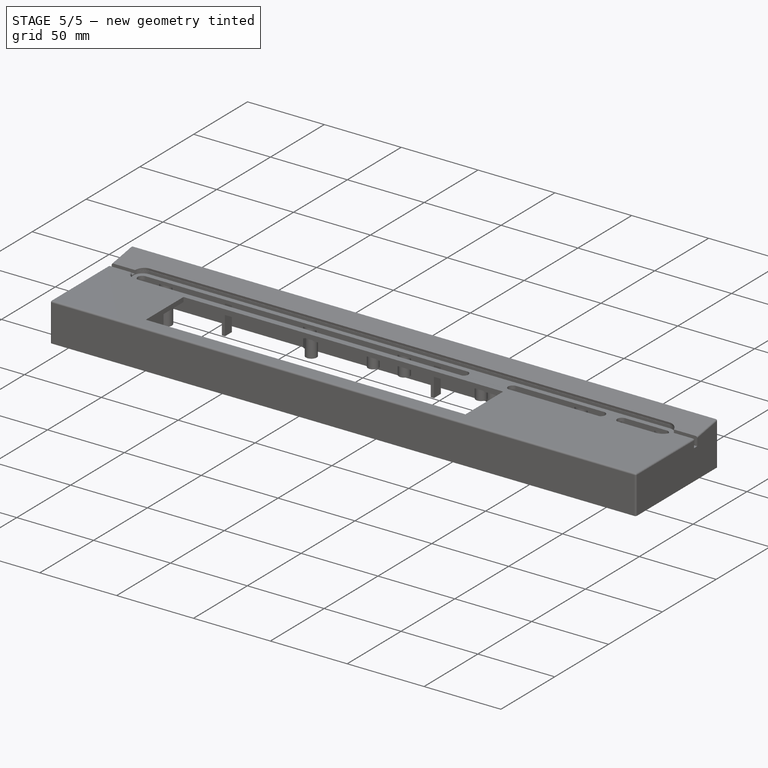
[diagram: stage 5 of 5 — iso view after this stage's code; geometry added in this stage tinted green]
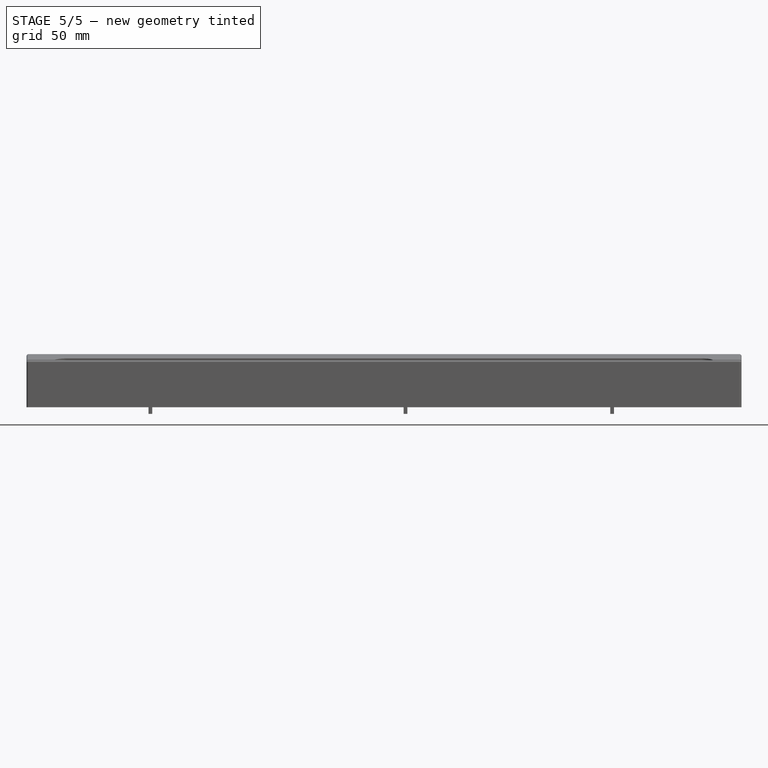
[diagram: stage 5 of 5 — front view after this stage's code; geometry added in this stage tinted green]
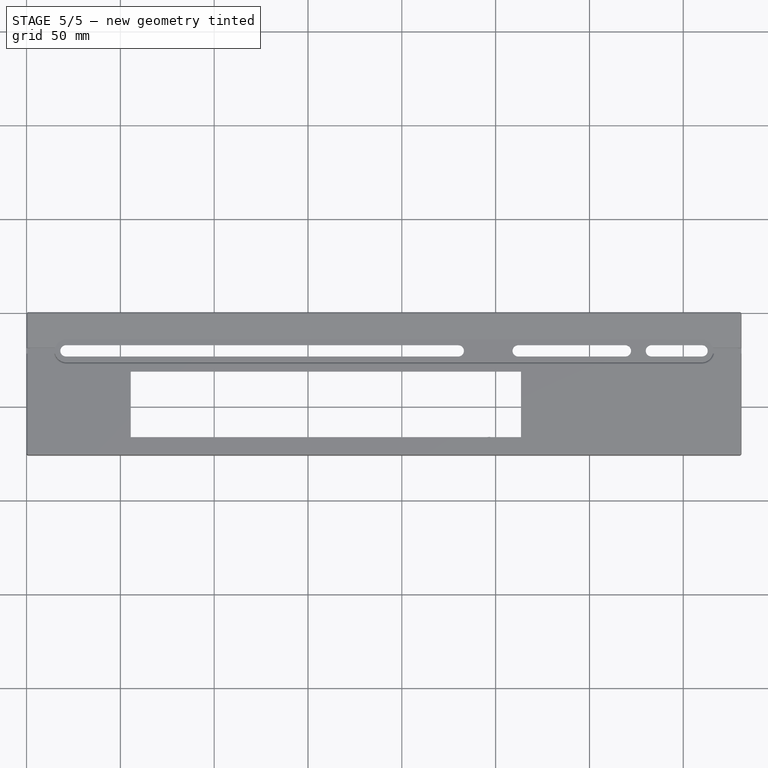
[diagram: stage 5 of 5 — top view after this stage's code; geometry added in this stage tinted green]
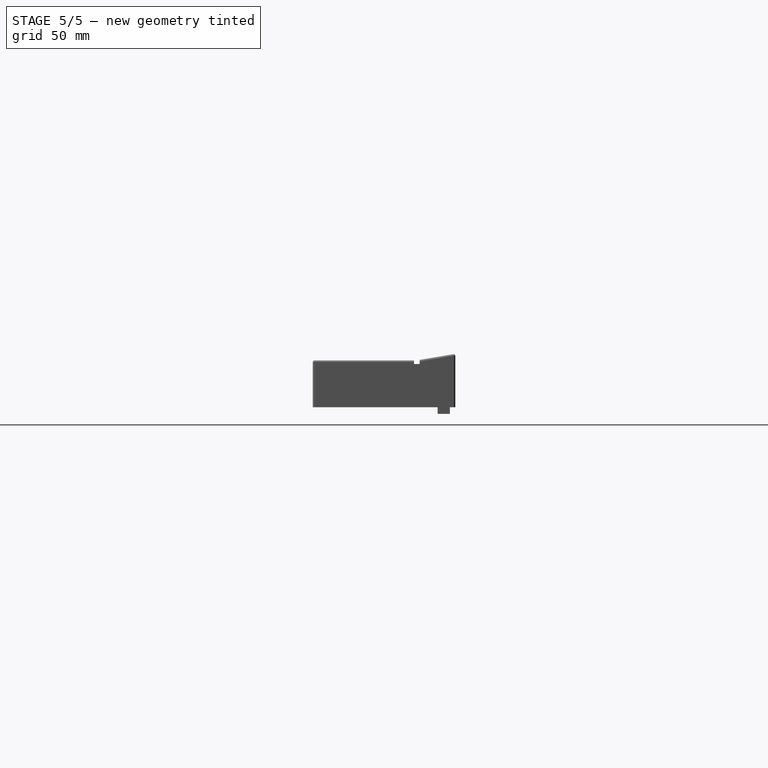
[diagram: stage 5 of 5 — right view after this stage's code; geometry added in this stage tinted green]
FEATURE [PartDesign::Hole] Hole014
  BaseFeature = -> Hole013
  Depth = 10
  DepthType = 0
  Diameter = 2.1
  DrillPoint = 1
  DrillPointAngle = 118
  HoleCutCountersinkAngle = 90
  HoleCutDepth = 0
  HoleCutDiameter = 0
  HoleCutType = 0
  ModelActualThread = false
  Profile = -> Hole013 [Face204]
  Tapered = false
  TaperedAngle = 90
  ThreadAngle = 0
  ThreadClass = 0
  ThreadCutOffInner = 0
  ThreadCutOffOuter = 0
  ThreadDirection = 0
  ThreadFit = 0
  ThreadPitch = 0
  ThreadSize = 0
  ThreadType = 0
  Threaded = false
FEATURE [PartDesign::Hole] Hole015
  BaseFeature = -> Hole014
  Depth = 10
  DepthType = 0
  Diameter = 2.1
  DrillPoint = 1
  DrillPointAngle = 118
  HoleCutCountersinkAngle = 90
  HoleCutDepth = 0
  HoleCutDiameter = 0
  HoleCutType = 0
  ModelActualThread = false
  Profile = -> Hole014 [Face125]
  Tapered = false
  TaperedAngle = 90
  ThreadAngle = 0
  ThreadClass = 0
  ThreadCutOffInner = 0
  ThreadCutOffOuter = 0
  ThreadDirection = 0
  ThreadFit = 0
  ThreadPitch = 0
  ThreadSize = 0
  ThreadType = 0
  Threaded = false
FEATURE [PartDesign::Hole] Hole016
  BaseFeature = -> Hole015
  Depth = 10
  DepthType = 0
  Diameter = 2.1
  DrillPoint = 1
  DrillPointAngle = 118
  HoleCutCountersinkAngle = 90
  HoleCutDepth = 0
  HoleCutDiameter = 0
  HoleCutType = 0
  ModelActualThread = false
  Profile = -> Hole015 [Face202]
  Tapered = false
  TaperedAngle = 90
  ThreadAngle = 0
  ThreadClass = 0
  ThreadCutOffInner = 0
  ThreadCutOffOuter = 0
  ThreadDirection = 0
  ThreadFit = 0
  ThreadPitch = 0
  ThreadSize = 0
  ThreadType = 0
  Threaded = false
FEATURE [PartDesign::Hole] Hole017
  BaseFeature = -> Hole016
  Depth = 9
  DepthType = 0
  Diameter = 2.1
  DrillPoint = 1
  DrillPointAngle = 118
  HoleCutCountersinkAngle = 90
  HoleCutDepth = 0
  HoleCutDiameter = 0
  HoleCutType = 0
  ModelActualThread = false
  Profile = -> Hole016 [Face130]
  Tapered = false
  TaperedAngle = 90
  ThreadAngle = 0
  ThreadClass = 0
  ThreadCutOffInner = 0
  ThreadCutOffOuter = 0
  ThreadDirection = 0
  ThreadFit = 0
  ThreadPitch = 0
  ThreadSize = 0
  ThreadType = 0
  Threaded = false
FEATURE [PartDesign::Hole] Hole018
  BaseFeature = -> Hole017
  Depth = 6
  DepthType = 0
  Diameter = 2.1
  DrillPoint = 1
  DrillPointAngle = 118
  HoleCutCountersinkAngle = 90
  HoleCutDepth = 0
  HoleCutDiameter = 0
  HoleCutType = 0
  ModelActualThread = false
  Profile = -> Hole017 [Face129]
  Tapered = false
  TaperedAngle = 90
  ThreadAngle = 0
  ThreadClass = 0
  ThreadCutOffInner = 0
  ThreadCutOffOuter = 0
  ThreadDirection = 0
  ThreadFit = 0
  ThreadPitch = 0
  ThreadSize = 0
  ThreadType = 0
  Threaded = false
FEATURE [PartDesign::Hole] Hole019
  BaseFeature = -> Hole018
  Depth = 6
  DepthType = 0
  Diameter = 2.1
  DrillPoint = 1
  DrillPointAngle = 118
  HoleCutCountersinkAngle = 90
  HoleCutDepth = 0
  HoleCutDiameter = 0
  HoleCutType = 0
  ModelActualThread = false
  Profile = -> Hole018 [Face134]
  Tapered = false
  TaperedAngle = 90
  ThreadAngle = 0
  ThreadClass = 0
  ThreadCutOffInner = 0
  ThreadCutOffOuter = 0
  ThreadDirection = 0
  ThreadFit = 0
  ThreadPitch = 0
  ThreadSize = 0
  ThreadType = 0
  Threaded = false
FEATURE [PartDesign::Hole] Hole020
  BaseFeature = -> Hole019
  Depth = 6
  DepthType = 0
  Diameter = 2.1
  DrillPoint = 1
  DrillPointAngle = 118
  HoleCutCountersinkAngle = 90
  HoleCutDepth = 0
  HoleCutDiameter = 0
  HoleCutType = 0
  ModelActualThread = false
  Profile = -> Hole019 [Face135]
  Tapered = false
  TaperedAngle = 90
  ThreadAngle = 0
  ThreadClass = 0
  ThreadCutOffInner = 0
  ThreadCutOffOuter = 0
  ThreadDirection = 0
  ThreadFit = 0
  ThreadPitch = 0
  ThreadSize = 0
  ThreadType = 0
  Threaded = false
FEATURE [PartDesign::Hole] Hole021
  BaseFeature = -> Hole020
  Depth = 6
  DepthType = 0
  Diameter = 2.1
  DrillPoint = 1
  DrillPointAngle = 118
  HoleCutCountersinkAngle = 90
  HoleCutDepth = 0
  HoleCutDiameter = 0
  HoleCutType = 0
  ModelActualThread = false
  Profile = -> Hole020 [Face128]
  Tapered = false
  TaperedAngle = 90
  ThreadAngle = 0
  ThreadClass = 0
  ThreadCutOffInner = 0
  ThreadCutOffOuter = 0
  ThreadDirection = 0
  ThreadFit = 0
  ThreadPitch = 0
  ThreadSize = 0
  ThreadType = 0
  Threaded = false
FEATURE [Sketcher::SketchObject] Sketch026
  MapMode = 5
  Placement = pos=(0,0,22) rot=(1,0,0;3.14159rad)
  Support = -> [Hole021]
  sketch-geometry (8):
    g0: LineSegment StartX=10.0746 StartY=11.75 StartZ=0 EndX=14.0746 EndY=11.75 EndZ=0
    g1: LineSegment StartX=14.0746 StartY=11.75 StartZ=0 EndX=14.0746 EndY=2.75 EndZ=0
    g2: LineSegment StartX=14.0746 StartY=2.75 StartZ=0 EndX=10.0746 EndY=2.75 EndZ=0
    g3: LineSegment StartX=10.0746 StartY=2.75 StartZ=0 EndX=10.0746 EndY=11.75 EndZ=0
    g4: LineSegment StartX=366.57 StartY=11.75 StartZ=0 EndX=371.57 EndY=11.75 EndZ=0
    g5: LineSegment StartX=371.57 StartY=11.75 StartZ=0 EndX=371.57 EndY=2.75 EndZ=0
    g6: LineSegment StartX=371.57 StartY=2.75 StartZ=0 EndX=366.57 EndY=2.75 EndZ=0
    g7: LineSegment StartX=366.57 StartY=2.75 StartZ=0 EndX=366.57 EndY=11.75 EndZ=0
  constraints (24):
    c: Coincident(g0,g1)
    c: Coincident(g1,g2)
    c: Coincident(g2,g3)
    c: Coincident(g3,g0)
    c: Horizontal(g0)
    c: Horizontal(g2)
    c: Vertical(g1)
    c: Vertical(g3)
    c: Coincident(g4,g5)
    c: Coincident(g5,g6)
    c: Coincident(g6,g7)
    c: Coincident(g7,g4)
    c: Horizontal(g4)
    c: Horizontal(g6)
    c: Vertical(g5)
    c: Vertical(g7)
    c: DistanceX(g4,g4) = 5
    c: DistanceY(g7,g7) = 9
    c: DistanceY(g1,g1) = 9
    c: DistanceX(g0,g0) = 4
    c: DistanceX(g0) = 10.0746
    c: DistanceY(g0) = 11.75
    c: DistanceX(g4) = 366.57
    c: DistanceY(g4) = 11.75
FEATURE [PartDesign::Pad] Pad015
  BaseFeature = -> Hole021
  Length = 1.6
  Length2 = 100
  Profile = -> Sketch026
  Type = 0
FEATURE [Sketcher::SketchObject] Sketch027
  MapMode = 5
  Placement = pos=(0,0,20.4) rot=(1,0,0;3.14159rad)
  Support = -> [Pad015]
  sketch-geometry (8):
    g0: LineSegment StartX=2.98075 StartY=18.239 StartZ=0 EndX=8.43075 EndY=18.239 EndZ=0
    g1: LineSegment StartX=8.43075 StartY=18.239 StartZ=0 EndX=8.43075 EndY=16.239 EndZ=0
    g2: LineSegment StartX=8.43075 StartY=16.239 StartZ=0 EndX=2.98075 EndY=16.239 EndZ=0
    g3: LineSegment StartX=2.98075 StartY=16.239 StartZ=0 EndX=2.98075 EndY=18.239 EndZ=0
    g4: LineSegment StartX=372.764 StartY=17.6352 StartZ=0 EndX=378.054 EndY=17.6352 EndZ=0
    g5: LineSegment StartX=378.054 StartY=17.6352 StartZ=0 EndX=378.054 EndY=15.6352 EndZ=0
    g6: LineSegment StartX=378.054 StartY=15.6352 StartZ=0 EndX=372.764 EndY=15.6352 EndZ=0
    g7: LineSegment StartX=372.764 StartY=15.6352 StartZ=0 EndX=372.764 EndY=17.6352 EndZ=0
  constraints (24):
    c: Coincident(g0,g1)
    c: Coincident(g1,g2)
    c: Coincident(g2,g3)
    c: Coincident(g3,g0)
    c: Horizontal(g0)
    c: Horizontal(g2)
    c: Vertical(g1)
    c: Vertical(g3)
    c: Coincident(g4,g5)
    c: Coincident(g5,g6)
    c: Coincident(g6,g7)
    c: Coincident(g7,g4)
    c: Horizontal(g4)
    c: Horizontal(g6)
    c: Vertical(g5)
    c: Vertical(g7)
    c: DistanceX(g4,g4) = 5.29
    c: DistanceY(g6,g4) = 2
    c: DistanceX(g0,g0) = 5.45
    c: DistanceY(g2,g0) = 2
    c: DistanceX(g0) = 2.98075
    c: DistanceY(g0) = 18.239
    c: DistanceX(g6) = 372.764
    c: DistanceY(g6) = 15.6352
FEATURE [PartDesign::Pad] Pad016
  BaseFeature = -> Pad015
  Length = 17
  Length2 = 100
  Profile = -> Sketch027
  Type = 0
FEATURE [Sketcher::SketchObject] Sketch028
  MapMode = 5
  Placement = pos=(0,0,22) rot=(1,0,0;3.14159rad)
  Support = -> [Pad016]
  sketch-geometry (16):
    g0: LineSegment StartX=11.0173 StartY=73.167 StartZ=0 EndX=13.0173 EndY=73.167 EndZ=0
    g1: LineSegment StartX=13.0173 StartY=73.167 StartZ=0 EndX=13.0173 EndY=61.867 EndZ=0
    g2: LineSegment StartX=13.0173 StartY=61.867 StartZ=0 EndX=11.0173 EndY=61.867 EndZ=0
    g3: LineSegment StartX=11.0173 StartY=61.867 StartZ=0 EndX=11.0173 EndY=73.167 EndZ=0
    g4: LineSegment StartX=2.8693 StartY=59.1826 StartZ=0 EndX=8.2893 EndY=59.1826 EndZ=0
    g5: LineSegment StartX=8.2893 StartY=59.1826 StartZ=0 EndX=8.2893 EndY=57.1826 EndZ=0
    g6: LineSegment StartX=8.2893 StartY=57.1826 StartZ=0 EndX=2.8693 EndY=57.1826 EndZ=0
    g7: LineSegment StartX=2.8693 StartY=57.1826 StartZ=0 EndX=2.8693 EndY=59.1826 EndZ=0
    g8: LineSegment StartX=367.99 StartY=73.0516 StartZ=0 EndX=369.99 EndY=73.0516 EndZ=0
    g9: LineSegment StartX=369.99 StartY=73.0516 StartZ=0 EndX=369.99 EndY=61.8116 EndZ=0
    g10: LineSegment StartX=369.99 StartY=61.8116 StartZ=0 EndX=367.99 EndY=61.8116 EndZ=0
    g11: LineSegment StartX=367.99 StartY=61.8116 StartZ=0 EndX=367.99 EndY=73.0516 EndZ=0
    g12: LineSegment StartX=372.821 StartY=59 StartZ=0 EndX=378.021 EndY=59 EndZ=0
    g13: LineSegment StartX=378.021 StartY=59 StartZ=0 EndX=378.021 EndY=57 EndZ=0
    g14: LineSegment StartX=378.021 StartY=57 StartZ=0 EndX=372.821 EndY=57 EndZ=0
    g15: LineSegment StartX=372.821 StartY=57 StartZ=0 EndX=372.821 EndY=59 EndZ=0
  constraints (48):
    c: Coincident(g0,g1)
    c: Coincident(g1,g2)
    c: Coincident(g2,g3)
    c: Coincident(g3,g0)
    c: Horizontal(g0)
    c: Horizontal(g2)
    c: Vertical(g1)
    c: Vertical(g3)
    c: Coincident(g4,g5)
    c: Coincident(g5,g6)
    c: Coincident(g6,g7)
    c: Coincident(g7,g4)
    c: Horizontal(g4)
    c: Horizontal(g6)
    c: Vertical(g5)
    c: Vertical(g7)
    c: Coincident(g8,g9)
    c: Coincident(g9,g10)
    c: Coincident(g10,g11)
    c: Coincident(g11,g8)
    c: Horizontal(g8)
    c: Horizontal(g10)
    c: Vertical(g9)
    c: Vertical(g11)
    c: Coincident(g12,g13)
    c: Coincident(g13,g14)
    c: Coincident(g14,g15)
    c: Coincident(g15,g12)
    c: Horizontal(g12)
    c: Horizontal(g14)
    c: Vertical(g13)
    c: Vertical(g15)
    c: DistanceX(g8,g8) = 2
    c: DistanceY(g14,g12) = 2
    c: DistanceX(g0,g0) = 2
    c: DistanceY(g6,g4) = 2
    c: DistanceX(g4,g4) = 5.42
    c: DistanceY(g3,g3) = 11.3
    c: DistanceX(g2) = 11.0173
    c: DistanceY(g2) = 61.867
    c: DistanceX(g4) = 8.2893
    c: DistanceY(g4) = 59.1826
    c: DistanceY(g11,g11) = 11.24
    c: DistanceX(g12,g12) = 5.2
    c: DistanceX(g10) = 367.99
    c: DistanceY(g10) = 61.8116
    c: DistanceX(g14) = 372.821
    c: DistanceY(g14) = 57
FEATURE [PartDesign::Pad] Pad017
  BaseFeature = -> Pad016
  Length = 17
  Length2 = 100
  Profile = -> Sketch028
  Type = 0
FEATURE [PartDesign::Body] Body
  Group = -> [Sketch,Pad,Thickness,Sketch001,Pocket,Sketch002,Pad001,Sketch003,Pad002,Sketch004,Pad003,Sketch005,Pad004,Sketch006,Pad005,Sketch007,Pad006,Sketch008,Pad007,Sketch009,Pad008,Sketch010,Pad009,Sketch011,Pad010,Sketch012,Pad011,Sketch015,Pad012,Draft,Sketch016,Pad013,Sketch017,Pocket001,Sketch018,Pocket002,Sketch021,Pocket003,Sketch022,Pocket004,Sketch023,Pocket005,Sketch024,Pocket006,Sketch025,+36 more]
  Origin = -> Origin
  Tip = -> Pad017
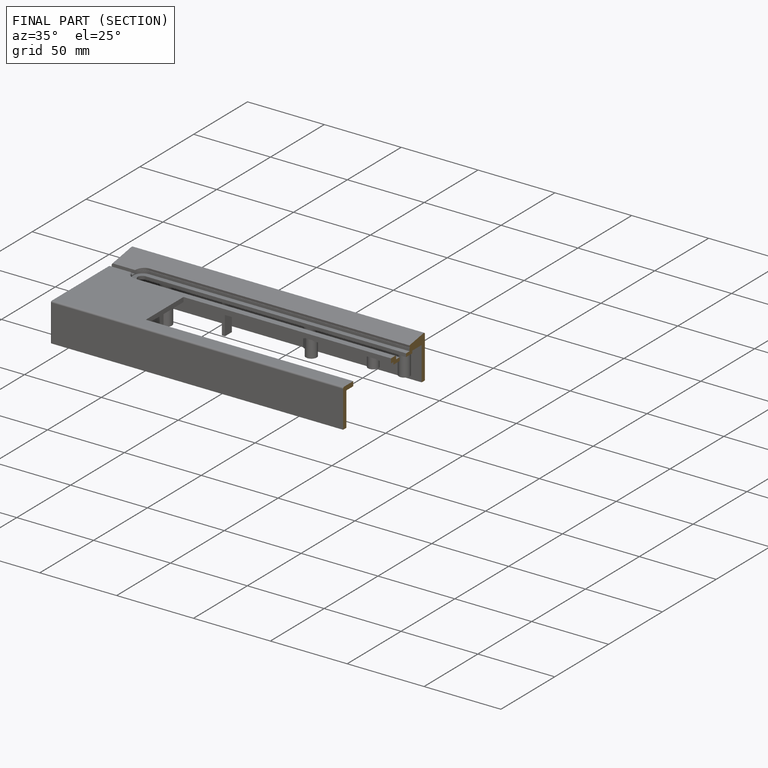
[diagram: finished part — half-section view (interior)]
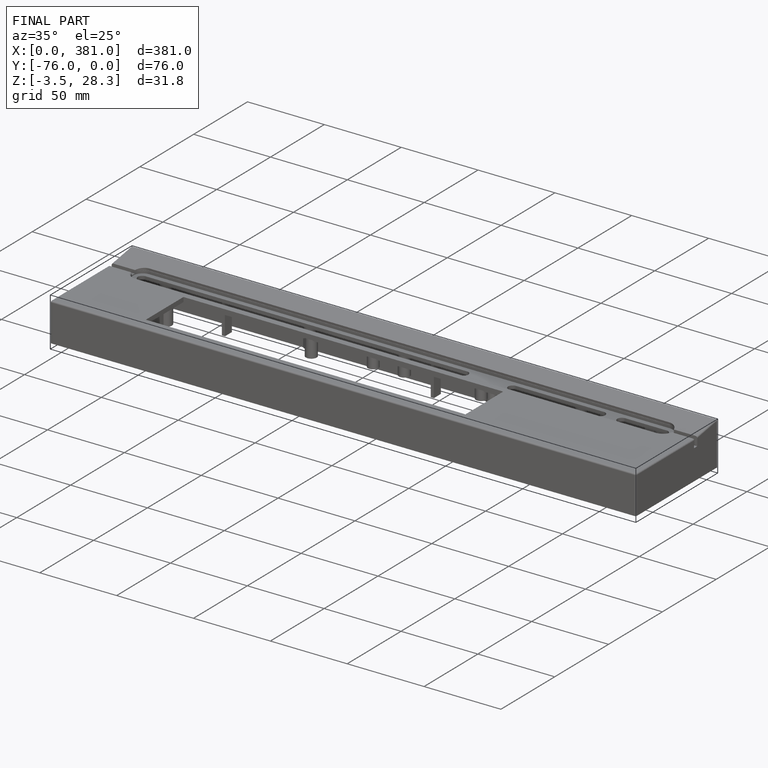
[diagram: finished part — iso view with bounding-box wireframe]
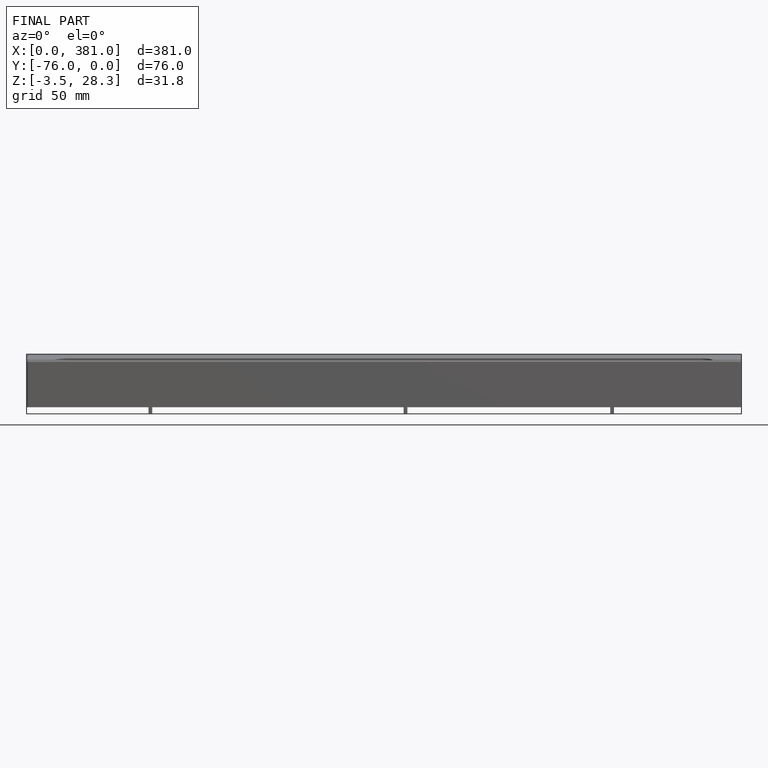
[diagram: finished part — front view with bounding-box wireframe]
